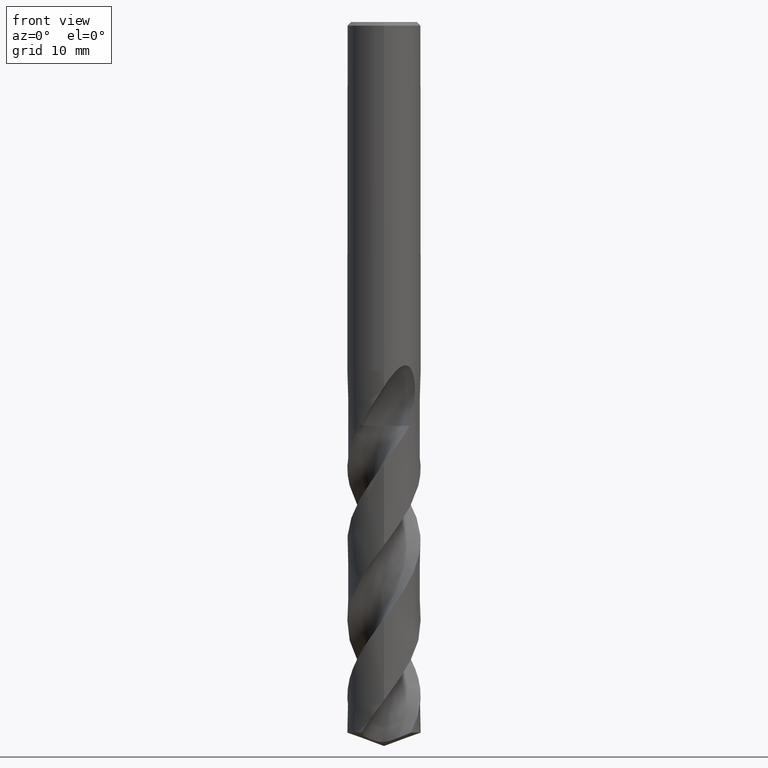
[diagram: clean part render]
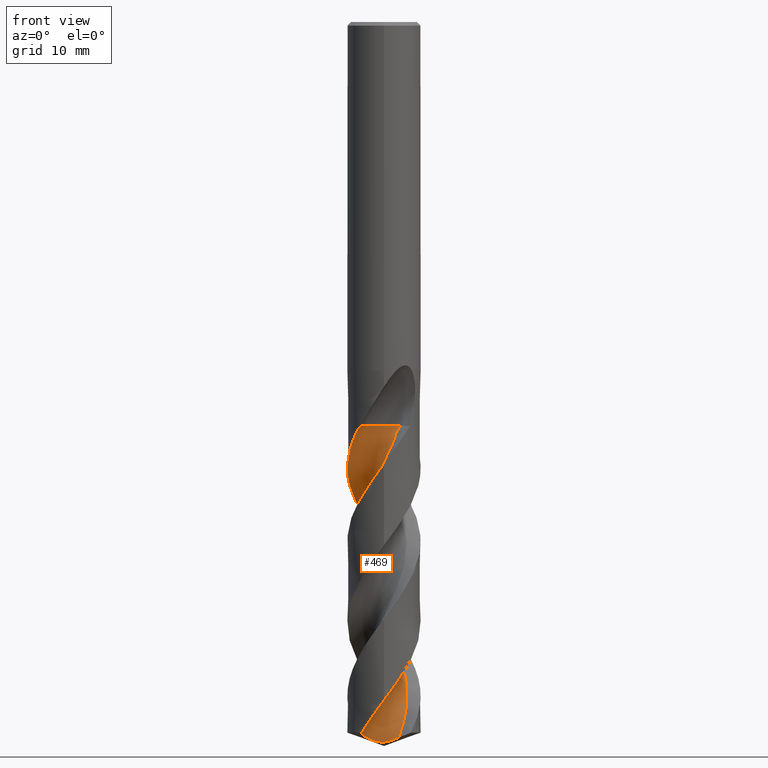
[diagram: same view with one face highlighted and labeled with its STEP entity id]
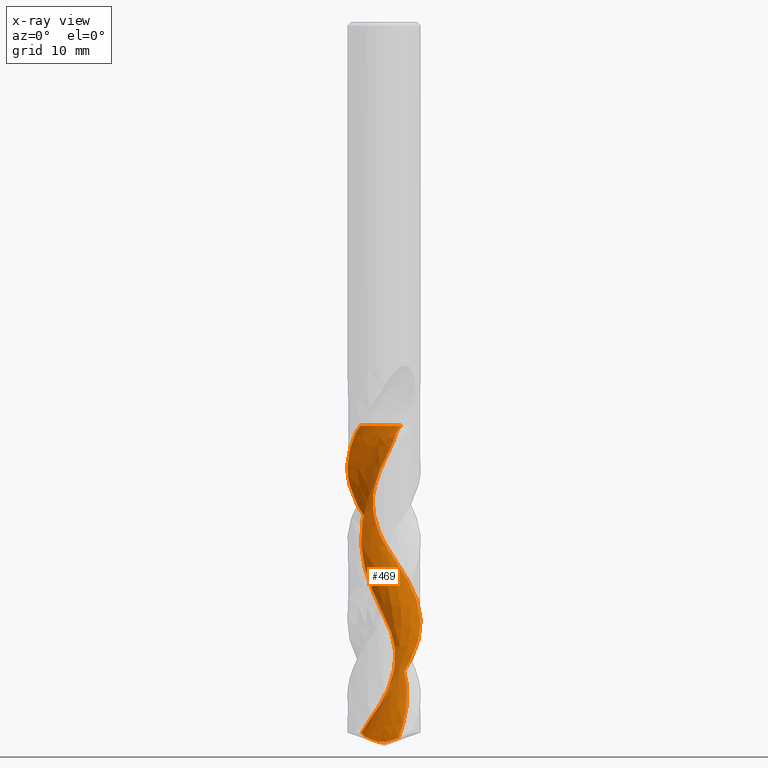
[diagram: x-ray of the same camera — body ghosted, the highlighted face saturated]
A machine part, front view. The second image highlights one B-rep face of the part: STEP entity #469.
The next image is the same camera in x-ray: the body ghosted, the highlighted face saturated — about 0% of this face is hidden behind the body in this view.
In plain terms, the highlighted face is a freeform B-spline surface patch.
Its self-contained STEP definition (entity closure, byte-faithful):
#265=EDGE_CURVE('',#385,#595,#725,.T.);
#289=VERTEX_POINT('',#751);
#355=VERTEX_POINT('',#820);
#369=EDGE_CURVE('',#673,#527,#837,.T.);
#377=EDGE_CURVE('',#527,#385,#845,.T.);
#385=VERTEX_POINT('',#853);
#407=VERTEX_POINT('',#876);
#437=EDGE_CURVE('',#289,#407,#909,.T.);
#469=ADVANCED_FACE('',(#944),#945,.F.);
#503=EDGE_CURVE('',#595,#289,#983,.T.);
#513=EDGE_CURVE('',#355,#653,#995,.T.);
#519=EDGE_CURVE('',#653,#673,#1002,.T.);
#527=VERTEX_POINT('',#1010);
#595=VERTEX_POINT('',#1086);
#653=VERTEX_POINT('',#1147);
#673=VERTEX_POINT('',#1169);
#685=EDGE_CURVE('',#407,#355,#1183,.T.);
#725=CIRCLE('',#1223,2.66666667);
#751=CARTESIAN_POINT('',(1.88561808545044,-1.98104858454956,-44.053));
#820=CARTESIAN_POINT('',(1.5951125702686E-010,-1.22465710514154,-78.5542612665458));
#837=B_SPLINE_CURVE_WITH_KNOTS('',3,(#1659,#1660,#1661,#1662,#1663,#1664,#1665,#1666,#1667,#1668,#1669,#1670,#1671,#1672,#1673,#1674,#1675,#1676,#1677,#1678,#1679,#1680,#1681,#1682,#1683,#1684,#1685,#1686,#1687,#1688,#1689,#1690,#1691,#1692,#1693,#1694,#1695,#1696,#1697,#1698,#1699,#1700,#1701,#1702,#1703,#1704,#1705,#1706,#1707,#1708,#1709,#1710,#1711,#1712,#1713,#1714,#1715,#1716,#1717,#1718,#1719,#1720,#1721,#1722,#1723,#1724,#1725,#1726,#1727,#1728,#1729,#1730,#1731,#1732,#1733,#1734),.UNSPECIFIED.,.F.,.F.,(4,2,2,2,2,2,2,2,2,2,2,2,2,2,2,2,2,2,2,2,2,2,2,2,2,2,2,2,2,2,2,2,2,2,2,2,2,4),(0.0,0.466993075148286,1.56085904181155,3.07977771318983,4.65076827145472,5.67854193360902,7.44799175725429,8.48582980228811,9.35767943266858,11.5467538142344,12.1132031263804,14.417521955391,14.6881141201877,16.8538456197284,17.7613122654109,19.6967075487883,20.7004624429811,22.3146852344594,23.2687747189614,24.9363892447133,25.7599779292434,27.9498842071209,28.5154185793703,30.7073525095157,31.2423332800286,33.442076748491,33.9887296771478,37.702920959675,38.2150786750297,39.0365205480189,39.8603336062619,40.4458257805383,40.7519291553112,41.0120003154966,41.2412726865701,41.5301891019866,42.1226019623575,43.0870979214801),.UNSPECIFIED.);
#845=B_SPLINE_CURVE_WITH_KNOTS('',3,(#1765,#1766,#1767,#1768,#1769,#1770,#1771,#1772,#1773,#1774,#1775,#1776,#1777,#1778,#1779,#1780,#1781,#1782,#1783,#1784,#1785,#1786,#1787,#1788,#1789,#1790,#1791,#1792,#1793,#1794,#1795,#1796,#1797,#1798,#1799,#1800,#1801,#1802,#1803,#1804,#1805,#1806,#1807,#1808,#1809,#1810,#1811,#1812,#1813,#1814,#1815,#1816,#1817,#1818,#1819,#1820,#1821,#1822,#1823,#1824,#1825,#1826,#1827,#1828,#1829,#1830,#1831,#1832,#1833,#1834,#1835,#1836,#1837,#1838,#1839,#1840),.UNSPECIFIED.,.F.,.F.,(4,2,2,2,2,2,2,2,2,2,2,2,2,2,2,2,2,2,2,2,2,2,2,2,2,2,2,2,2,2,2,2,2,2,2,2,2,4),(0.0,0.466993075148286,1.56085904181155,3.07977771318983,4.65076827145472,5.67854193360902,7.44799175725429,8.48582980228811,9.35767943266858,11.5467538142344,12.1132031263804,14.417521955391,14.6881141201877,16.8538456197284,17.7613122654109,19.6967075487883,20.7004624429811,22.3146852344594,23.2687747189614,24.9363892447133,25.7599779292434,27.9498842071209,28.5154185793703,30.7073525095157,31.2423332800286,33.442076748491,33.9887296771478,37.702920959675,38.2150786750297,39.0365205480189,39.8603336062619,40.4458257805383,40.7519291553112,41.0120003154966,41.2412726865701,41.5301891019866,42.1226019623575,43.0870979214801),.UNSPECIFIED.);
#853=CARTESIAN_POINT('',(-2.5488328128519,-3.08265693111187,-44.053));
#876=CARTESIAN_POINT('',(1.60189261773388,-1.94788214096683,-78.0820800006169));
#909=B_SPLINE_CURVE_WITH_KNOTS('',3,(#1963,#1964,#1965,#1966,#1967,#1968,#1969,#1970,#1971,#1972,#1973,#1974,#1975,#1976,#1977,#1978,#1979,#1980,#1981,#1982,#1983,#1984,#1985,#1986,#1987,#1988,#1989,#1990,#1991,#1992,#1993,#1994,#1995,#1996,#1997,#1998,#1999,#2000,#2001,#2002,#2003,#2004,#2005,#2006,#2007,#2008,#2009,#2010,#2011,#2012,#2013,#2014,#2015,#2016,#2017,#2018),.UNSPECIFIED.,.F.,.F.,(4,1,2,1,2,2,2,2,2,1,2,1,2,1,2,1,2,1,2,1,2,1,2,1,2,1,2,1,2,1,2,1,2,2,4),(0.0,0.787558223712185,1.57511644742437,2.36267467113655,3.15023289484874,4.72534934227311,6.30046578969748,7.87558223712185,9.45069868454622,11.0258151319706,12.600931579395,14.1760480268193,15.7511644742437,17.3262809216681,18.9013973690924,20.4765138165168,22.0516302639412,23.6267467113655,25.2018631587899,26.7769796062143,28.3520960536387,29.927212501063,31.5023289484874,33.0774453959118,34.6525618433361,36.2276782907605,37.8027947381849,39.3779111856092,40.9530276330336,42.528144080458,44.1032605278824,45.6783769753067,47.2534934227311,48.8286098701555,50.4037263175798),.UNSPECIFIED.);
#944=FACE_OUTER_BOUND('',#2119,.T.);
#945=B_SPLINE_SURFACE_WITH_KNOTS('',3,3,((#2120,#2121,#2122,#2123,#2124,#2125,#2126,#2127,#2128,#2129,#2130,#2131,#2132,#2133,#2134,#2135,#2136,#2137,#2138,#2139,#2140,#2141,#2142,#2143,#2144,#2145,#2146,#2147,#2148,#2149,#2150,#2151,#2152,#2153,#2154,#2155,#2156,#2157,#2158,#2159,#2160,#2161,#2162,#2163,#2164,#2165,#2166,#2167,#2168,#2169,#2170,#2171,#2172,#2173,#2174,#2175),(#2176,#2177,#2178,#2179,#2180,#2181,#2182,#2183,#2184,#2185,#2186,#2187,#2188,#2189,#2190,#2191,#2192,#2193,#2194,#2195,#2196,#2197,#2198,#2199,#2200,#2201,#2202,#2203,#2204,#2205,#2206,#2207,#2208,#2209,#2210,#2211,#2212,#2213,#2214,#2215,#2216,#2217,#2218,#2219,#2220,#2221,#2222,#2223,#2224,#2225,#2226,#2227,#2228,#2229,#2230,#2231),(#2232,#2233,#2234,#2235,#2236,#2237,#2238,#2239,#2240,#2241,#2242,#2243,#2244,#2245,#2246,#2247,#2248,#2249,#2250,#2251,#2252,#2253,#2254,#2255,#2256,#2257,#2258,#2259,#2260,#2261,#2262,#2263,#2264,#2265,#2266,#2267,#2268,#2269,#2270,#2271,#2272,#2273,#2274,#2275,#2276,#2277,#2278,#2279,#2280,#2281,#2282,#2283,#2284,#2285,#2286,#2287),(#2288,#2289,#2290,#2291,#2292,#2293,#2294,#2295,#2296,#2297,#2298,#2299,#2300,#2301,#2302,#2303,#2304,#2305,#2306,#2307,#2308,#2309,#2310,#2311,#2312,#2313,#2314,#2315,#2316,#2317,#2318,#2319,#2320,#2321,#2322,#2323,#2324,#2325,#2326,#2327,#2328,#2329,#2330,#2331,#2332,#2333,#2334,#2335,#2336,#2337,#2338,#2339,#2340,#2341,#2342,#2343),(#2344,#2345,#2346,#2347,#2348,#2349,#2350,#2351,#2352,#2353,#2354,#2355,#2356,#2357,#2358,#2359,#2360,#2361,#2362,#2363,#2364,#2365,#2366,#2367,#2368,#2369,#2370,#2371,#2372,#2373,#2374,#2375,#2376,#2377,#2378,#2379,#2380,#2381,#2382,#2383,#2384,#2385,#2386,#2387,#2388,#2389,#2390,#2391,#2392,#2393,#2394,#2395,#2396,#2397,#2398,#2399),(#2400,#2401,#2402,#2403,#2404,#2405,#2406,#2407,#2408,#2409,#2410,#2411,#2412,#2413,#2414,#2415,#2416,#2417,#2418,#2419,#2420,#2421,#2422,#2423,#2424,#2425,#2426,#2427,#2428,#2429,#2430,#2431,#2432,#2433,#2434,#2435,#2436,#2437,#2438,#2439,#2440,#2441,#2442,#2443,#2444,#2445,#2446,#2447,#2448,#2449,#2450,#2451,#2452,#2453,#2454,#2455),(#2456,#2457,#2458,#2459,#2460,#2461,#2462,#2463,#2464,#2465,#2466,#2467,#2468,#2469,#2470,#2471,#2472,#2473,#2474,#2475,#2476,#2477,#2478,#2479,#2480,#2481,#2482,#2483,#2484,#2485,#2486,#2487,#2488,#2489,#2490,#2491,#2492,#2493,#2494,#2495,#2496,#2497,#2498,#2499,#2500,#2501,#2502,#2503,#2504,#2505,#2506,#2507,#2508,#2509,#2510,#2511),(#2512,#2513,#2514,#2515,#2516,#2517,#2518,#2519,#2520,#2521,#2522,#2523,#2524,#2525,#2526,#2527,#2528,#2529,#2530,#2531,#2532,#2533,#2534,#2535,#2536,#2537,#2538,#2539,#2540,#2541,#2542,#2543,#2544,#2545,#2546,#2547,#2548,#2549,#2550,#2551,#2552,#2553,#2554,#2555,#2556,#2557,#2558,#2559,#2560,#2561,#2562,#2563,#2564,#2565,#2566,#2567),(#2568,#2569,#2570,#2571,#2572,#2573,#2574,#2575,#2576,#2577,#2578,#2579,#2580,#2581,#2582,#2583,#2584,#2585,#2586,#2587,#2588,#2589,#2590,#2591,#2592,#2593,#2594,#2595,#2596,#2597,#2598,#2599,#2600,#2601,#2602,#2603,#2604,#2605,#2606,#2607,#2608,#2609,#2610,#2611,#2612,#2613,#2614,#2615,#2616,#2617,#2618,#2619,#2620,#2621,#2622,#2623),(#2624,#2625,#2626,#2627,#2628,#2629,#2630,#2631,#2632,#2633,#2634,#2635,#2636,#2637,#2638,#2639,#2640,#2641,#2642,#2643,#2644,#2645,#2646,#2647,#2648,#2649,#2650,#2651,#2652,#2653,#2654,#2655,#2656,#2657,#2658,#2659,#2660,#2661,#2662,#2663,#2664,#2665,#2666,#2667,#2668,#2669,#2670,#2671,#2672,#2673,#2674,#2675,#2676,#2677,#2678,#2679),(#2680,#2681,#2682,#2683,#2684,#2685,#2686,#2687,#2688,#2689,#2690,#2691,#2692,#2693,#2694,#2695,#2696,#2697,#2698,#2699,#2700,#2701,#2702,#2703,#2704,#2705,#2706,#2707,#2708,#2709,#2710,#2711,#2712,#2713,#2714,#2715,#2716,#2717,#2718,#2719,#2720,#2721,#2722,#2723,#2724,#2725,#2726,#2727,#2728,#2729,#2730,#2731,#2732,#2733,#2734,#2735)),.UNSPECIFIED.,.F.,.F.,.F.,(4,1,1,1,1,1,1,1,4),(4,1,2,1,2,2,2,2,2,1,2,1,2,1,2,1,2,1,2,1,2,1,2,1,2,1,2,1,2,1,2,1,2,2,4),(4.27095186761561E-018,0.39270124676232,0.785402493524641,1.17810374028696,1.57080498704928,1.9635062338116,2.35620748057392,2.74890872733624,3.14160997409856),(0.0,0.787558223712185,1.57511644742437,2.36267467113655,3.15023289484874,4.72534934227311,6.30046578969748,7.87558223712185,9.45069868454622,11.0258151319706,12.600931579395,14.1760480268193,15.7511644742437,17.3262809216681,18.9013973690924,20.4765138165168,22.0516302639412,23.6267467113655,25.2018631587899,26.7769796062143,28.3520960536387,29.927212501063,31.5023289484874,33.0774453959118,34.6525618433361,36.2276782907605,37.8027947381849,39.3779111856092,40.9530276330336,42.528144080458,44.1032605278824,45.6783769753067,47.2534934227311,48.8286098701555,50.4037263175798),.UNSPECIFIED.);
#983=CIRCLE('',#3192,2.66666667);
#995=B_SPLINE_CURVE_WITH_KNOTS('',3,(#3205,#3206,#3207,#3208,#3209,#3210,#3211,#3212,#3213,#3214,#3215,#3216,#3217,#3218,#3219,#3220,#3221,#3222,#3223,#3224),.UNSPECIFIED.,.F.,.F.,(4,2,2,2,2,2,2,2,2,4),(0.0,1.64133997887445,2.78218913730545,3.88524741802057,5.19155584151713,6.70887719510368,8.46802953306298,10.4836395074553,12.0346978723326,13.5906877847211),.UNSPECIFIED.);
#1002=B_SPLINE_CURVE_WITH_KNOTS('',3,(#3234,#3235,#3236,#3237,#3238,#3239,#3240,#3241,#3242,#3243,#3244,#3245,#3246,#3247,#3248,#3249,#3250,#3251,#3252,#3253,#3254,#3255,#3256,#3257,#3258,#3259,#3260,#3261,#3262,#3263,#3264,#3265,#3266,#3267,#3268,#3269,#3270,#3271,#3272,#3273,#3274,#3275,#3276,#3277,#3278,#3279,#3280,#3281,#3282,#3283,#3284,#3285,#3286,#3287,#3288,#3289,#3290,#3291,#3292,#3293,#3294,#3295,#3296,#3297,#3298,#3299,#3300,#3301,#3302,#3303,#3304,#3305,#3306,#3307,#3308,#3309),.UNSPECIFIED.,.F.,.F.,(4,2,2,2,2,2,2,2,2,2,2,2,2,2,2,2,2,2,2,2,2,2,2,2,2,2,2,2,2,2,2,2,2,2,2,2,2,4),(0.0,0.466993075148286,1.56085904181155,3.07977771318983,4.65076827145472,5.67854193360902,7.44799175725429,8.48582980228811,9.35767943266858,11.5467538142344,12.1132031263804,14.417521955391,14.6881141201877,16.8538456197284,17.7613122654109,19.6967075487883,20.7004624429811,22.3146852344594,23.2687747189614,24.9363892447133,25.7599779292434,27.9498842071209,28.5154185793703,30.7073525095157,31.2423332800286,33.442076748491,33.9887296771478,37.702920959675,38.2150786750297,39.0365205480189,39.8603336062619,40.4458257805383,40.7519291553112,41.0120003154966,41.2412726865701,41.5301891019866,42.1226019623575,43.0870979214801),.UNSPECIFIED.);
#1010=CARTESIAN_POINT('',(-2.92011337268194E-013,3.99994831991984,-57.1076866303911));
#1086=CARTESIAN_POINT('',(0.312690919283315,-1.21838198033207,-44.053));
#1147=CARTESIAN_POINT('',(-2.44003030410645,-3.16958232501416,-77.5441190629352));
#1169=CARTESIAN_POINT('',(8.09910003246913E-012,-3.99999106807003,-74.0120660422402));
#1183=B_SPLINE_CURVE_WITH_KNOTS('',3,(#5097,#5098,#5099,#5100,#5101,#5102,#5103,#5104,#5105,#5106,#5107,#5108,#5109,#5110,#5111,#5112,#5113,#5114,#5115,#5116),.UNSPECIFIED.,.F.,.F.,(4,2,2,2,2,2,2,2,2,4),(0.0,1.64133997887445,2.78218913730545,3.88524741802057,5.19155584151713,6.70887719510368,8.46802953306298,10.4836395074553,12.0346978723326,13.5906877847211),.UNSPECIFIED.);
#1223=AXIS2_PLACEMENT_3D('',#5148,#5149,#5150);
#1659=CARTESIAN_POINT('',(-2.44003030410643,-3.16958232501417,-77.5441190629352));
#1660=CARTESIAN_POINT('',(-2.36653943218278,-3.22615718932682,-77.41909998862));
#1661=CARTESIAN_POINT('',(-2.29109681931183,-3.28016388675594,-77.2942115285044));
#1662=CARTESIAN_POINT('',(-2.03286758279446,-3.45176005834521,-76.8764024681429));
#1663=CARTESIAN_POINT('',(-1.84218511839699,-3.55721865966488,-76.5828194805431));
#1664=CARTESIAN_POINT('',(-1.36772987432182,-3.77104902941733,-75.8838686907894));
#1665=CARTESIAN_POINT('',(-1.07882384472195,-3.86360090557134,-75.4812749264571));
#1666=CARTESIAN_POINT('',(-0.475974533362218,-3.98385147961287,-74.6544280908261));
#1667=CARTESIAN_POINT('',(-0.163245125045734,-4.00890235173543,-74.2313462920688));
#1668=CARTESIAN_POINT('',(0.354282392357964,-3.98953046200891,-73.536010155739));
#1669=CARTESIAN_POINT('',(0.558024811992571,-3.96616073812796,-73.262231516311));
#1670=CARTESIAN_POINT('',(1.10506788883261,-3.86043305349245,-72.5136809024347));
#1671=CARTESIAN_POINT('',(1.44072751075867,-3.74815208077645,-72.0377547604957));
#1672=CARTESIAN_POINT('',(1.94349026436057,-3.50221823943321,-71.2867859968702));
#1673=CARTESIAN_POINT('',(2.12190254993383,-3.39707124681849,-71.0103453221121));
#1674=CARTESIAN_POINT('',(2.43355346883196,-3.1792775270544,-70.4991490924699));
#1675=CARTESIAN_POINT('',(2.56892167044668,-3.07088930802768,-70.2646646470823));
#1676=CARTESIAN_POINT('',(3.01706190506668,-2.66185354972843,-69.4457283526137));
#1677=CARTESIAN_POINT('',(3.28766602103833,-2.31931034648457,-68.8716881287357));
#1678=CARTESIAN_POINT('',(3.55246014523061,-1.841855836092,-68.1351639283753));
#1679=CARTESIAN_POINT('',(3.60265698135378,-1.74162603129385,-67.9832964960658));
#1680=CARTESIAN_POINT('',(3.83572001433136,-1.22287509194081,-67.2158669078585));
#1681=CARTESIAN_POINT('',(3.94994759812654,-0.778045318450372,-66.6132901652099));
#1682=CARTESIAN_POINT('',(3.99117214994822,-0.270505714153656,-65.925144698073));
#1683=CARTESIAN_POINT('',(3.99442842378655,-0.217182115088803,-65.8527726150629));
#1684=CARTESIAN_POINT('',(4.01414540009559,0.264176060987026,-65.2015770291237));
#1685=CARTESIAN_POINT('',(3.96288823620994,0.692291551623742,-64.6339157536924));
#1686=CARTESIAN_POINT('',(3.79479359354523,1.27732961071964,-63.8143634585176));
#1687=CARTESIAN_POINT('',(3.73367173641758,1.44626193299723,-63.5711597535409));
#1688=CARTESIAN_POINT('',(3.50709409595252,1.96130950564172,-62.8130234918723));
#1689=CARTESIAN_POINT('',(3.30338152867672,2.28776733678422,-62.3049164661655));
#1690=CARTESIAN_POINT('',(2.9284041885554,2.73194703410919,-61.5213888270366));
#1691=CARTESIAN_POINT('',(2.78908096338837,2.87407604629689,-61.252237273913));
#1692=CARTESIAN_POINT('',(2.39903070639518,3.21663851910576,-60.553936793662));
#1693=CARTESIAN_POINT('',(2.13417567637753,3.3981221774218,-60.128057003741));
#1694=CARTESIAN_POINT('',(1.68304499724717,3.63355589517643,-59.4430098736708));
#1695=CARTESIAN_POINT('',(1.50973820833729,3.70891062620023,-59.1872166773107));
#1696=CARTESIAN_POINT('',(1.02016578453944,3.88174403455321,-58.4878978613247));
#1697=CARTESIAN_POINT('',(0.696298353513876,3.95271806615963,-58.0483037219411));
#1698=CARTESIAN_POINT('',(0.204713328917628,3.99803964666923,-57.3844324155601));
#1699=CARTESIAN_POINT('',(0.0417590514874879,4.00302847778836,-57.1639714298073));
#1700=CARTESIAN_POINT('',(-0.552406922914989,3.98510000380912,-56.3614493593831));
#1701=CARTESIAN_POINT('',(-0.979076084521999,3.9022519193712,-55.7896982340833));
#1702=CARTESIAN_POINT('',(-1.48901304130448,3.71413917018153,-55.0567879871774));
#1703=CARTESIAN_POINT('',(-1.59181016631804,3.67125216361922,-54.905898434482));
#1704=CARTESIAN_POINT('',(-2.08394572693071,3.44138415041336,-54.1726914900018));
#1705=CARTESIAN_POINT('',(-2.44279748107018,3.19664819219933,-53.6014189746885));
#1706=CARTESIAN_POINT('',(-2.83201400886412,2.82671108804017,-52.8770885441765));
#1707=CARTESIAN_POINT('',(-2.90531587936063,2.75130723749786,-52.7345665039194));
#1708=CARTESIAN_POINT('',(-3.26447789654264,2.35150042677078,-52.0085787094983));
#1709=CARTESIAN_POINT('',(-3.49944777315625,1.98512773776562,-51.4359727677321));
#1710=CARTESIAN_POINT('',(-3.71398904500096,1.48906522590048,-50.7083875053442));
#1711=CARTESIAN_POINT('',(-3.75262057519129,1.38881639640494,-50.5631805395433));
#1712=CARTESIAN_POINT('',(-4.02181293755795,0.596800710413922,-49.4348485174782));
#1713=CARTESIAN_POINT('',(-4.06267297585666,-0.1432667793182,-48.4811708986464));
#1714=CARTESIAN_POINT('',(-3.88678098324579,-0.949911893349955,-47.3640768686547));
#1715=CARTESIAN_POINT('',(-3.8618493145911,-1.04670091186072,-47.2280849796507));
#1716=CARTESIAN_POINT('',(-3.78716471925533,-1.29718291161859,-46.8751618698827));
#1717=CARTESIAN_POINT('',(-3.73155899958446,-1.44968295910734,-46.6585370216559));
#1718=CARTESIAN_POINT('',(-3.60058866682281,-1.74986295349734,-46.2268346263341));
#1719=CARTESIAN_POINT('',(-3.52634773279137,-1.89510205494165,-46.0163296892236));
#1720=CARTESIAN_POINT('',(-3.38272509934263,-2.13781503216381,-45.6312282169192));
#1721=CARTESIAN_POINT('',(-3.3202283699948,-2.2333186305512,-45.470368305817));
#1722=CARTESIAN_POINT('',(-3.22221264938645,-2.37066394586686,-45.2198689559426));
#1723=CARTESIAN_POINT('',(-3.19964072951217,-2.40058137984461,-45.1614801928599));
#1724=CARTESIAN_POINT('',(-3.16162621487717,-2.45036538638801,-45.0670806012796));
#1725=CARTESIAN_POINT('',(-3.1435766532575,-2.47349278801983,-45.0241735305459));
#1726=CARTESIAN_POINT('',(-3.10836648899329,-2.51755767757758,-44.9441475769958));
#1727=CARTESIAN_POINT('',(-3.09138391199728,-2.53839202101596,-44.9070139536361));
#1728=CARTESIAN_POINT('',(-3.05180964548351,-2.58592053609453,-44.8238100399286));
#1729=CARTESIAN_POINT('',(-3.02895080230337,-2.61267796364424,-44.7780178360415));
#1730=CARTESIAN_POINT('',(-2.95659132936607,-2.69505733363308,-44.6399440750886));
#1731=CARTESIAN_POINT('',(-2.90459909726043,-2.75117249280536,-44.5498720538232));
#1732=CARTESIAN_POINT('',(-2.75801590118876,-2.89989843845145,-44.3188872108996));
#1733=CARTESIAN_POINT('',(-2.65831829493388,-2.99213149262657,-44.183386918948));
#1734=CARTESIAN_POINT('',(-2.5488328128519,-3.08265693111187,-44.053));
#1765=CARTESIAN_POINT('',(-2.44003030410643,-3.16958232501417,-77.5441190629352));
#1766=CARTESIAN_POINT('',(-2.36653943218278,-3.22615718932682,-77.41909998862));
#1767=CARTESIAN_POINT('',(-2.29109681931183,-3.28016388675594,-77.2942115285044));
#1768=CARTESIAN_POINT('',(-2.03286758279446,-3.45176005834521,-76.8764024681429));
#1769=CARTESIAN_POINT('',(-1.84218511839699,-3.55721865966488,-76.5828194805431));
#1770=CARTESIAN_POINT('',(-1.36772987432182,-3.77104902941733,-75.8838686907894));
#1771=CARTESIAN_POINT('',(-1.07882384472195,-3.86360090557134,-75.4812749264571));
#1772=CARTESIAN_POINT('',(-0.475974533362218,-3.98385147961287,-74.6544280908261));
#1773=CARTESIAN_POINT('',(-0.163245125045734,-4.00890235173543,-74.2313462920688));
#1774=CARTESIAN_POINT('',(0.354282392357964,-3.98953046200891,-73.536010155739));
#1775=CARTESIAN_POINT('',(0.558024811992571,-3.96616073812796,-73.262231516311));
#1776=CARTESIAN_POINT('',(1.10506788883261,-3.86043305349245,-72.5136809024347));
#1777=CARTESIAN_POINT('',(1.44072751075867,-3.74815208077645,-72.0377547604957));
#1778=CARTESIAN_POINT('',(1.94349026436057,-3.50221823943321,-71.2867859968702));
#1779=CARTESIAN_POINT('',(2.12190254993383,-3.39707124681849,-71.0103453221121));
#1780=CARTESIAN_POINT('',(2.43355346883196,-3.1792775270544,-70.4991490924699));
#1781=CARTESIAN_POINT('',(2.56892167044668,-3.07088930802768,-70.2646646470823));
#1782=CARTESIAN_POINT('',(3.01706190506668,-2.66185354972843,-69.4457283526137));
#1783=CARTESIAN_POINT('',(3.28766602103833,-2.31931034648457,-68.8716881287357));
#1784=CARTESIAN_POINT('',(3.55246014523061,-1.841855836092,-68.1351639283753));
#1785=CARTESIAN_POINT('',(3.60265698135378,-1.74162603129385,-67.9832964960658));
#1786=CARTESIAN_POINT('',(3.83572001433136,-1.22287509194081,-67.2158669078585));
#1787=CARTESIAN_POINT('',(3.94994759812654,-0.778045318450372,-66.6132901652099));
#1788=CARTESIAN_POINT('',(3.99117214994822,-0.270505714153656,-65.925144698073));
#1789=CARTESIAN_POINT('',(3.99442842378655,-0.217182115088803,-65.8527726150629));
#1790=CARTESIAN_POINT('',(4.01414540009559,0.264176060987026,-65.2015770291237));
#1791=CARTESIAN_POINT('',(3.96288823620994,0.692291551623742,-64.6339157536924));
#1792=CARTESIAN_POINT('',(3.79479359354523,1.27732961071964,-63.8143634585176));
#1793=CARTESIAN_POINT('',(3.73367173641758,1.44626193299723,-63.5711597535409));
#1794=CARTESIAN_POINT('',(3.50709409595252,1.96130950564172,-62.8130234918723));
#1795=CARTESIAN_POINT('',(3.30338152867672,2.28776733678422,-62.3049164661655));
#1796=CARTESIAN_POINT('',(2.9284041885554,2.73194703410919,-61.5213888270366));
#1797=CARTESIAN_POINT('',(2.78908096338837,2.87407604629689,-61.252237273913));
#1798=CARTESIAN_POINT('',(2.39903070639518,3.21663851910576,-60.553936793662));
#1799=CARTESIAN_POINT('',(2.13417567637753,3.3981221774218,-60.128057003741));
#1800=CARTESIAN_POINT('',(1.68304499724717,3.63355589517643,-59.4430098736708));
#1801=CARTESIAN_POINT('',(1.50973820833729,3.70891062620023,-59.1872166773107));
#1802=CARTESIAN_POINT('',(1.02016578453944,3.88174403455321,-58.4878978613247));
#1803=CARTESIAN_POINT('',(0.696298353513876,3.95271806615963,-58.0483037219411));
#1804=CARTESIAN_POINT('',(0.204713328917628,3.99803964666923,-57.3844324155601));
#1805=CARTESIAN_POINT('',(0.0417590514874879,4.00302847778836,-57.1639714298073));
#1806=CARTESIAN_POINT('',(-0.552406922914989,3.98510000380912,-56.3614493593831));
#1807=CARTESIAN_POINT('',(-0.979076084521999,3.9022519193712,-55.7896982340833));
#1808=CARTESIAN_POINT('',(-1.48901304130448,3.71413917018153,-55.0567879871774));
#1809=CARTESIAN_POINT('',(-1.59181016631804,3.67125216361922,-54.905898434482));
#1810=CARTESIAN_POINT('',(-2.08394572693071,3.44138415041336,-54.1726914900018));
#1811=CARTESIAN_POINT('',(-2.44279748107018,3.19664819219933,-53.6014189746885));
#1812=CARTESIAN_POINT('',(-2.83201400886412,2.82671108804017,-52.8770885441765));
#1813=CARTESIAN_POINT('',(-2.90531587936063,2.75130723749786,-52.7345665039194));
#1814=CARTESIAN_POINT('',(-3.26447789654264,2.35150042677078,-52.0085787094983));
#1815=CARTESIAN_POINT('',(-3.49944777315625,1.98512773776562,-51.4359727677321));
#1816=CARTESIAN_POINT('',(-3.71398904500096,1.48906522590048,-50.7083875053442));
#1817=CARTESIAN_POINT('',(-3.75262057519129,1.38881639640494,-50.5631805395433));
#1818=CARTESIAN_POINT('',(-4.02181293755795,0.596800710413922,-49.4348485174782));
#1819=CARTESIAN_POINT('',(-4.06267297585666,-0.1432667793182,-48.4811708986464));
#1820=CARTESIAN_POINT('',(-3.88678098324579,-0.949911893349955,-47.3640768686547));
#1821=CARTESIAN_POINT('',(-3.8618493145911,-1.04670091186072,-47.2280849796507));
#1822=CARTESIAN_POINT('',(-3.78716471925533,-1.29718291161859,-46.8751618698827));
#1823=CARTESIAN_POINT('',(-3.73155899958446,-1.44968295910734,-46.6585370216559));
#1824=CARTESIAN_POINT('',(-3.60058866682281,-1.74986295349734,-46.2268346263341));
#1825=CARTESIAN_POINT('',(-3.52634773279137,-1.89510205494165,-46.0163296892236));
#1826=CARTESIAN_POINT('',(-3.38272509934263,-2.13781503216381,-45.6312282169192));
#1827=CARTESIAN_POINT('',(-3.3202283699948,-2.2333186305512,-45.470368305817));
#1828=CARTESIAN_POINT('',(-3.22221264938645,-2.37066394586686,-45.2198689559426));
#1829=CARTESIAN_POINT('',(-3.19964072951217,-2.40058137984461,-45.1614801928599));
#1830=CARTESIAN_POINT('',(-3.16162621487717,-2.45036538638801,-45.0670806012796));
#1831=CARTESIAN_POINT('',(-3.1435766532575,-2.47349278801983,-45.0241735305459));
#1832=CARTESIAN_POINT('',(-3.10836648899329,-2.51755767757758,-44.9441475769958));
#1833=CARTESIAN_POINT('',(-3.09138391199728,-2.53839202101596,-44.9070139536361));
#1834=CARTESIAN_POINT('',(-3.05180964548351,-2.58592053609453,-44.8238100399286));
#1835=CARTESIAN_POINT('',(-3.02895080230337,-2.61267796364424,-44.7780178360415));
#1836=CARTESIAN_POINT('',(-2.95659132936607,-2.69505733363308,-44.6399440750886));
#1837=CARTESIAN_POINT('',(-2.90459909726043,-2.75117249280536,-44.5498720538232));
#1838=CARTESIAN_POINT('',(-2.75801590118876,-2.89989843845145,-44.3188872108996));
#1839=CARTESIAN_POINT('',(-2.65831829493388,-2.99213149262657,-44.183386918948));
#1840=CARTESIAN_POINT('',(-2.5488328128519,-3.08265693111187,-44.053));
#1963=CARTESIAN_POINT('',(1.88561808545044,-1.98104858454956,-44.053));
#1964=CARTESIAN_POINT('',(1.69871710418192,-1.97145550625743,-44.2347711487142));
#1965=CARTESIAN_POINT('',(1.40105879059682,-1.9902735115873,-44.5966997313065));
#1966=CARTESIAN_POINT('',(1.25524262252866,-2.07849680161746,-44.9582869916186));
#1967=CARTESIAN_POINT('',(1.17295794795068,-2.21050845906527,-45.3246242624263));
#1968=CARTESIAN_POINT('',(1.05910316465496,-2.32106882855452,-45.6916518436982));
#1969=CARTESIAN_POINT('',(0.897888482859323,-2.3825138896529,-46.0564769908884));
#1970=CARTESIAN_POINT('',(0.633345362803169,-2.43920137865008,-46.600074037587));
#1971=CARTESIAN_POINT('',(0.463314016011667,-2.47053526617684,-46.9629339274622));
#1972=CARTESIAN_POINT('',(0.132702175014207,-2.52415658086229,-47.6927269873472));
#1973=CARTESIAN_POINT('',(-0.039404545569242,-2.52664816621715,-48.0572720913552));
#1974=CARTESIAN_POINT('',(-0.379671808132233,-2.49677684826464,-48.7847694331444));
#1975=CARTESIAN_POINT('',(-0.548473533722496,-2.46309517554488,-49.1487251187091));
#1976=CARTESIAN_POINT('',(-0.875232425195068,-2.36863703771597,-49.8772121125722));
#1977=CARTESIAN_POINT('',(-1.03381734780271,-2.30263611286328,-50.2412921072369));
#1978=CARTESIAN_POINT('',(-1.33502888416427,-2.14783636284207,-50.9693745043084));
#1979=CARTESIAN_POINT('',(-1.61895958980909,-1.95136446728658,-51.6977800472369));
#1980=CARTESIAN_POINT('',(-1.85747432109222,-1.70407157619252,-52.4255614071146));
#1981=CARTESIAN_POINT('',(-2.0743969412662,-1.44548140937606,-53.1538195459448));
#1982=CARTESIAN_POINT('',(-2.25865002553005,-1.15417533283017,-53.882430307527));
#1983=CARTESIAN_POINT('',(-2.38000745875682,-0.832532855869806,-54.6102664537786));
#1984=CARTESIAN_POINT('',(-2.47669043022925,-0.508863955865235,-55.3384250500163));
#1985=CARTESIAN_POINT('',(-2.53066669506456,-0.168324476237864,-56.0669506972623));
#1986=CARTESIAN_POINT('',(-2.51522906193053,0.175034925779605,-56.7947747192682));
#1987=CARTESIAN_POINT('',(-2.47634327747086,0.510535543078954,-57.5229696783011));
#1988=CARTESIAN_POINT('',(-2.39148385935212,0.844710729094954,-58.2515224547695));
#1989=CARTESIAN_POINT('',(-2.24167618595024,1.15407285382542,-58.9793485391108));
#1990=CARTESIAN_POINT('',(-2.07345219583152,1.44695155834701,-59.7075328176437));
#1991=CARTESIAN_POINT('',(-1.86353049485122,1.72045642099337,-60.4360784421937));
#1992=CARTESIAN_POINT('',(-1.60373916107546,1.94551775505974,-61.1639045022787));
#1993=CARTESIAN_POINT('',(-1.33352672688686,2.1481577037688,-61.8920915525542));
#1994=CARTESIAN_POINT('',(-1.0326550475334,2.31653153460555,-62.6206388100986));
#1995=CARTESIAN_POINT('',(-0.705100916554753,2.4207083464109,-63.3484648169749));
#1996=CARTESIAN_POINT('',(-0.376829531664485,2.50017441221641,-64.0766514406906));
#1997=CARTESIAN_POINT('',(-0.033921102047061,2.53605044123371,-64.8051986438269));
#1998=CARTESIAN_POINT('',(0.308151357864577,2.50240605650522,-65.5330245937897));
#1999=CARTESIAN_POINT('',(0.641124326470529,2.44577453490987,-66.2612107871778));
#2000=CARTESIAN_POINT('',(0.970329160379157,2.34332189545187,-66.9897575800239));
#2001=CARTESIAN_POINT('',(1.2713137576936,2.17733543498727,-67.7175850022408));
#2002=CARTESIAN_POINT('',(1.55486200877199,1.99382130281938,-68.4457743364049));
#2003=CARTESIAN_POINT('',(1.81685073746285,1.76967945548349,-69.1743223821374));
#2004=CARTESIAN_POINT('',(2.02781637909507,1.49831165432829,-69.9021423385309));
#2005=CARTESIAN_POINT('',(2.21584766564785,1.21774430736986,-70.6303183817833));
#2006=CARTESIAN_POINT('',(2.36805036840725,0.908399420444521,-71.3588640141905));
#2007=CARTESIAN_POINT('',(2.45469953354382,0.575760612307374,-72.0867139411507));
#2008=CARTESIAN_POINT('',(2.51657007996296,0.243667674758999,-72.8149373763252));
#2009=CARTESIAN_POINT('',(2.53413914952904,-0.100719705432679,-73.5434851220113));
#2010=CARTESIAN_POINT('',(2.48267330657574,-0.440415531595069,-74.271236674593));
#2011=CARTESIAN_POINT('',(2.40905004043989,-0.769761451436298,-74.9993206860832));
#2012=CARTESIAN_POINT('',(2.289452040094,-1.09303356828949,-75.7278757899758));
#2013=CARTESIAN_POINT('',(2.10609953626921,-1.38472010627573,-76.4558700752252));
#2014=CARTESIAN_POINT('',(1.90515688375822,-1.6576834552991,-77.1842455406873));
#2015=CARTESIAN_POINT('',(1.78752767061407,-1.78279863615638,-77.5483980349687));
#2016=CARTESIAN_POINT('',(1.53619302644919,-2.0094869113596,-78.2760297747866));
#2017=CARTESIAN_POINT('',(1.39219443422046,-2.10643437031163,-78.6399434306458));
#2018=CARTESIAN_POINT('',(1.23772979094716,-2.18602061778716,-79.0036560380439));
#2119=EDGE_LOOP('',(#5348,#5349,#5350,#5351,#5352,#5353,#5354,#5355));
#2120=CARTESIAN_POINT('',(-1.88561808545044,-5.75228475545044,-44.053));
#2121=CARTESIAN_POINT('',(-2.0748424016559,-5.74036834167693,-44.2347111820866));
#2122=CARTESIAN_POINT('',(-2.45768282621587,-5.67658281948247,-44.6010506262366));
#2123=CARTESIAN_POINT('',(-2.83672477600638,-5.50681601707043,-44.9685873157248));
#2124=CARTESIAN_POINT('',(-3.19972604058699,-5.27273565390364,-45.3305179147087));
#2125=CARTESIAN_POINT('',(-3.54883646002288,-5.02777041119343,-45.6913787011269));
#2126=CARTESIAN_POINT('',(-3.87523529612714,-4.7678020391308,-46.0544817662319));
#2127=CARTESIAN_POINT('',(-4.34948265800626,-4.36981623492712,-46.6033243118205));
#2128=CARTESIAN_POINT('',(-4.63818519739632,-4.06934256682616,-46.9688632645854));
#2129=CARTESIAN_POINT('',(-5.14075851269367,-3.40283040892474,-47.6953041656039));
#2130=CARTESIAN_POINT('',(-5.35956882233019,-3.04621043623093,-48.0588744203096));
#2131=CARTESIAN_POINT('',(-5.72139083343968,-2.29659034309069,-48.7878176522458));
#2132=CARTESIAN_POINT('',(-5.864779605191,-1.90417531692651,-49.1520694267406));
#2133=CARTESIAN_POINT('',(-6.0672493674153,-1.09646737950463,-49.8799237953738));
#2134=CARTESIAN_POINT('',(-6.12824452286799,-0.682714266010691,-50.2440306649577));
#2135=CARTESIAN_POINT('',(-6.1616738118374,0.150158831111139,-50.972332201339));
#2136=CARTESIAN_POINT('',(-6.11430621530324,0.984260308935617,-51.7002737701539));
#2137=CARTESIAN_POINT('',(-5.90112540210279,1.79270473222553,-52.4289135752216));
#2138=CARTESIAN_POINT('',(-5.6021597246892,2.57115876245143,-53.1570203563027));
#2139=CARTESIAN_POINT('',(-5.22856707947427,3.31869551837139,-53.8847328395642));
#2140=CARTESIAN_POINT('',(-4.71330543427188,3.97725100267945,-54.6133106240272));
#2141=CARTESIAN_POINT('',(-4.13136656870392,4.57447114425136,-55.3415281981285));
#2142=CARTESIAN_POINT('',(-3.49303852702021,5.11378732682885,-56.0693357269174));
#2143=CARTESIAN_POINT('',(-2.75962059154981,5.51531692658076,-56.7979272739066));
#2144=CARTESIAN_POINT('',(-1.98913497717789,5.83415426108515,-57.5261043319823));
#2145=CARTESIAN_POINT('',(-1.18970894191142,6.07754845404524,-58.2538815603436));
#2146=CARTESIAN_POINT('',(-0.357326334321131,6.15682850013663,-58.9824707460166));
#2147=CARTESIAN_POINT('',(0.476453649679866,6.14549043466452,-59.7106597130872));
#2148=CARTESIAN_POINT('',(1.3070243529172,6.05340565828876,-60.438444939949));
#2149=CARTESIAN_POINT('',(2.10305743080905,5.79752954175811,-61.1670341651153));
#2150=CARTESIAN_POINT('',(2.86459106406186,5.45785433682353,-61.895220020658));
#2151=CARTESIAN_POINT('',(3.59129178456279,5.04526340235638,-62.6230033813133));
#2152=CARTESIAN_POINT('',(4.2215822353658,4.49583022883483,-63.3515926732365));
#2153=CARTESIAN_POINT('',(4.78708331217688,3.88303046099331,-64.0797790884477));
#2154=CARTESIAN_POINT('',(5.29178754522439,3.21699744518891,-64.8075626688186));
#2155=CARTESIAN_POINT('',(5.65387934160946,2.46331871686825,-65.5361519826524));
#2156=CARTESIAN_POINT('',(5.93142540219789,1.67700992481101,-66.2643385608918));
#2157=CARTESIAN_POINT('',(6.1320927651231,0.865801592397677,-66.9921220054496));
#2158=CARTESIAN_POINT('',(6.16712298753372,0.0303859617664778,-67.7207098323858));
#2159=CARTESIAN_POINT('',(6.11159171124345,-0.801622044448957,-68.448894087938));
#2160=CARTESIAN_POINT('',(5.97560311939556,-1.62614543622089,-69.1766783477619));
#2161=CARTESIAN_POINT('',(5.67788749405107,-2.40749397981856,-69.9052739135521));
#2162=CARTESIAN_POINT('',(5.29831563880729,-3.14994122123602,-70.6334685691919));
#2163=CARTESIAN_POINT('',(4.84777014952999,-3.85372942265754,-71.3612472285655));
#2164=CARTESIAN_POINT('',(4.26569911108234,-4.45400889472423,-72.0898114323896));
#2165=CARTESIAN_POINT('',(3.62379953213806,-4.98627430592916,-72.8179695324542));
#2166=CARTESIAN_POINT('',(2.93193896161057,-5.45503766172046,-73.5457764968193));
#2167=CARTESIAN_POINT('',(2.1600220440256,-5.77656520929115,-74.274441797097));
#2168=CARTESIAN_POINT('',(1.35998596485068,-6.01170856952258,-75.0026930905657));
#2169=CARTESIAN_POINT('',(0.539388423313962,-6.16878149374002,-75.7303754874454));
#2170=CARTESIAN_POINT('',(-0.296383435877542,-6.16019404038665,-76.4588056822081));
#2171=CARTESIAN_POINT('',(-1.12414309743108,-6.06226834035514,-77.1869736932007));
#2172=CARTESIAN_POINT('',(-1.5327439227691,-5.97242774281627,-77.5511789511912));
#2173=CARTESIAN_POINT('',(-2.32296934076703,-5.70867711215669,-78.2792483064728));
#2174=CARTESIAN_POINT('',(-2.70387455414173,-5.53996117257398,-78.6426271663919));
#2175=CARTESIAN_POINT('',(-3.06511498634734,-5.33720503610894,-79.0065016763936));
#2176=CARTESIAN_POINT('',(-2.13243607235588,-5.50544636091594,-44.0530000000001));
#2177=CARTESIAN_POINT('',(-2.32150831936558,-5.49337789015518,-44.2347067839711));
#2178=CARTESIAN_POINT('',(-2.69894218796743,-5.42401741223764,-44.6013697203719));
#2179=CARTESIAN_POINT('',(-3.06109672723077,-5.23898587152524,-44.9693427391917));
#2180=CARTESIAN_POINT('',(-3.40013724121201,-4.98653411256913,-45.3309501545091));
#2181=CARTESIAN_POINT('',(-3.72597834887179,-4.72617256680508,-45.6913586689355));
#2182=CARTESIAN_POINT('',(-4.03133997359351,-4.45539363782329,-46.0543354363304));
#2183=CARTESIAN_POINT('',(-4.4758283424637,-4.04368389086294,-46.6035626873177));
#2184=CARTESIAN_POINT('',(-4.74281321711781,-3.73544398593883,-46.9692981221581));
#2185=CARTESIAN_POINT('',(-5.19825357885242,-3.05767894561716,-47.6954931743143));
#2186=CARTESIAN_POINT('',(-5.39355985536009,-2.69800316948328,-48.0589919278193));
#2187=CARTESIAN_POINT('',(-5.70827401360261,-1.94697428148033,-48.7880412150784));
#2188=CARTESIAN_POINT('',(-5.8281836460793,-1.5562235286215,-49.1523147016435));
#2189=CARTESIAN_POINT('',(-5.98397146150305,-0.756652269853513,-49.8801226657317));
#2190=CARTESIAN_POINT('',(-6.02220642213962,-0.349287372283241,-50.2442315128997));
#2191=CARTESIAN_POINT('',(-6.01125638688987,0.46605746093176,-50.9725491156797));
#2192=CARTESIAN_POINT('',(-5.92215673590386,1.27847368398033,-51.7004566644522));
#2193=CARTESIAN_POINT('',(-5.67224961825538,2.0573529627653,-52.4291594150054));
#2194=CARTESIAN_POINT('',(-5.33926016748197,2.8020405811183,-53.1572551107598));
#2195=CARTESIAN_POINT('',(-4.935808686067,3.51306504258369,-53.884901702135));
#2196=CARTESIAN_POINT('',(-4.39849772454077,4.12995270705188,-54.6135338847236));
#2197=CARTESIAN_POINT('',(-3.7986567277718,4.68275615415669,-55.3417557806373));
#2198=CARTESIAN_POINT('',(-3.14732060403677,5.17676039647962,-56.0695106501462));
#2199=CARTESIAN_POINT('',(-2.41009737066057,5.53129781689171,-56.7981584723105));
#2200=CARTESIAN_POINT('',(-1.64070437516937,5.80225183841543,-57.5263342362842));
#2201=CARTESIAN_POINT('',(-0.847221898941037,5.99887781029362,-58.2540545776298));
#2202=CARTESIAN_POINT('',(-0.0299001018782623,6.03348375075547,-58.9826997168987));
#2203=CARTESIAN_POINT('',(0.783967021596708,5.97858574739549,-59.7108890502247));
#2204=CARTESIAN_POINT('',(1.59060814980173,5.84588040501485,-60.4386184903533));
#2205=CARTESIAN_POINT('',(2.3551622680056,5.55490842518446,-61.1672636990388));
#2206=CARTESIAN_POINT('',(3.08119992203693,5.1830776296568,-61.8954494569134));
#2207=CARTESIAN_POINT('',(3.76987527630757,4.74261770497516,-62.6231768048619));
#2208=CARTESIAN_POINT('',(4.357385927032,4.17337214648336,-63.3518220619998));
#2209=CARTESIAN_POINT('',(4.87757742781682,3.54504752505851,-64.0800084772109));
#2210=CARTESIAN_POINT('',(5.33634117932935,2.86842686723797,-64.8077360351036));
#2211=CARTESIAN_POINT('',(5.65130647186387,2.11343983282844,-65.5363813588918));
#2212=CARTESIAN_POINT('',(5.8810951502483,1.33076073445195,-66.2645679371312));
#2213=CARTESIAN_POINT('',(6.03537472197058,0.527967119354251,-66.9922954144842));
#2214=CARTESIAN_POINT('',(6.02659133354954,-0.29003989322474,-67.7209390159641));
#2215=CARTESIAN_POINT('',(5.92861692941393,-1.09985330204058,-68.449122880844));
#2216=CARTESIAN_POINT('',(5.75333436974862,-1.8983274040528,-69.1768511389802));
#2217=CARTESIAN_POINT('',(5.42224174838848,-2.64638121363353,-69.9055035815283));
#2218=CARTESIAN_POINT('',(5.0124413059177,-3.35167745364062,-70.6336996045212));
#2219=CARTESIAN_POINT('',(4.53608109202682,-4.01601464134307,-71.3614220139746));
#2220=CARTESIAN_POINT('',(3.93649472167279,-4.57252545379273,-72.0900385988663));
#2221=CARTESIAN_POINT('',(3.28149573543755,-5.05872842680899,-72.8181919131951));
#2222=CARTESIAN_POINT('',(2.58149666449062,-5.48105918603119,-73.5459445537878));
#2223=CARTESIAN_POINT('',(1.81077083691609,-5.75543303822085,-74.2746768413175));
#2224=CARTESIAN_POINT('',(1.01690232282721,-5.94303277504313,-75.002940440964));
#2225=CARTESIAN_POINT('',(0.20718444099641,-6.05422566079658,-75.7305588244012));
#2226=CARTESIAN_POINT('',(-0.60893263010982,-6.00293800492154,-76.4590209410234));
#2227=CARTESIAN_POINT('',(-1.41241582900535,-5.86398803782359,-77.1871738134641));
#2228=CARTESIAN_POINT('',(-1.80694696063751,-5.75510386646743,-77.5513829328333));
#2229=CARTESIAN_POINT('',(-2.56507155236437,-5.45608403575671,-78.2794843232441));
#2230=CARTESIAN_POINT('',(-2.92858843097768,-5.27186326089987,-78.6428239983198));
#2231=CARTESIAN_POINT('',(-3.27134892153499,-5.05557436999085,-79.0067103749929));
#2232=CARTESIAN_POINT('',(-2.52780940903116,-4.91372298130953,-44.0529999999999));
#2233=CARTESIAN_POINT('',(-2.71651711523703,-4.90141093521293,-44.2346995515061));
#2234=CARTESIAN_POINT('',(-3.08092318647232,-4.82305292092296,-44.6018945264032));
#2235=CARTESIAN_POINT('',(-3.40324009003898,-4.61421333151697,-44.9705851683001));
#2236=CARTESIAN_POINT('',(-3.68706332692413,-4.33455517058536,-45.3316610487264));
#2237=CARTESIAN_POINT('',(-3.96025295650468,-4.05266107549446,-45.6913257217608));
#2238=CARTESIAN_POINT('',(-4.21925009118822,-3.7686312537513,-46.0540947731101));
#2239=CARTESIAN_POINT('',(-4.59877548276473,-3.34131347930685,-46.6039547335727));
#2240=CARTESIAN_POINT('',(-4.81924588168578,-3.0261805178979,-46.9700133175327));
#2241=CARTESIAN_POINT('',(-5.17596525169853,-2.34465767731453,-47.6958040379195));
#2242=CARTESIAN_POINT('',(-5.32305821660401,-1.988218294913,-48.0591852100261));
#2243=CARTESIAN_POINT('',(-5.54301625621217,-1.25310545026515,-48.7884088836726));
#2244=CARTESIAN_POINT('',(-5.61663933908062,-0.87501933208218,-49.1527180875002));
#2245=CARTESIAN_POINT('',(-5.68231855398653,-0.110281753344586,-49.8804497556927));
#2246=CARTESIAN_POINT('',(-5.67758308818577,0.275258498850065,-50.2445618350881));
#2247=CARTESIAN_POINT('',(-5.58486344077532,1.03790615560479,-50.9729058778113));
#2248=CARTESIAN_POINT('',(-5.42094070029396,1.79036565991399,-51.7007574524229));
#2249=CARTESIAN_POINT('',(-5.1093534160817,2.49552238625622,-52.4295637626938));
#2250=CARTESIAN_POINT('',(-4.72175840828194,3.15916139478508,-53.1576411857204));
#2251=CARTESIAN_POINT('',(-4.27312147923595,3.78530283827425,-53.8851794382817));
#2252=CARTESIAN_POINT('',(-3.70829093122795,4.31010419946342,-54.613901073803));
#2253=CARTESIAN_POINT('',(-3.09031610867551,4.76697394653343,-55.3421300833367));
#2254=CARTESIAN_POINT('',(-2.43098823793499,5.16520053305641,-56.0697983296648));
#2255=CARTESIAN_POINT('',(-1.70484308554885,5.42426015375225,-56.7985387420075));
#2256=CARTESIAN_POINT('',(-0.956676305214194,5.59990221014625,-57.5267123319468));
#2257=CARTESIAN_POINT('',(-0.193676517640086,5.7053749673352,-58.2543391288855));
#2258=CARTESIAN_POINT('',(0.575764780260629,5.65664065994306,-58.983076335866));
#2259=CARTESIAN_POINT('',(1.33249232700919,5.52255971518001,-59.7112662002634));
#2260=CARTESIAN_POINT('',(2.07513106023271,5.31814630627645,-60.4389039574917));
#2261=CARTESIAN_POINT('',(2.76278417184247,4.9695153968432,-61.1676411786956));
#2262=CARTESIAN_POINT('',(3.40505769949727,4.54750241953215,-61.8958268352843));
#2263=CARTESIAN_POINT('',(4.00661582829953,4.06643759641902,-62.6234620040322));
#2264=CARTESIAN_POINT('',(4.50070625637011,3.47458752381587,-63.3521993563082));
#2265=CARTESIAN_POINT('',(4.92412398166496,2.83323775859423,-64.0803857240658));
#2266=CARTESIAN_POINT('',(5.28681582002456,2.15371512433413,-64.8080212005353));
#2267=CARTESIAN_POINT('',(5.50702765689811,1.41485252086109,-65.5367585650596));
#2268=CARTESIAN_POINT('',(5.64276510047709,0.658422657982847,-66.2649452309501));
#2269=CARTESIAN_POINT('',(5.70763484028086,-0.109098299158001,-66.9925806124003));
#2270=CARTESIAN_POINT('',(5.61816545362139,-0.874872340371458,-67.7213159133659));
#2271=CARTESIAN_POINT('',(5.44414864767291,-1.62342781175668,-68.4494992071449));
#2272=CARTESIAN_POINT('',(5.20065357851905,-2.35418849244887,-69.1771353044064));
#2273=CARTESIAN_POINT('',(4.81606110025846,-3.022394057335,-69.9058813165237));
#2274=CARTESIAN_POINT('',(4.36058982763401,-3.64138311508458,-70.6340795779972));
#2275=CARTESIAN_POINT('',(3.84829928684187,-4.21656930259938,-71.3617094803763));
#2276=CARTESIAN_POINT('',(3.23109481768706,-4.67859602262136,-72.0904122182252));
#2277=CARTESIAN_POINT('',(2.56821989647763,-5.06748434895558,-72.81855765413));
#2278=CARTESIAN_POINT('',(1.87041183529254,-5.3937330842254,-73.5462209248834));
#2279=CARTESIAN_POINT('',(1.12081897119827,-5.57429305266542,-74.2750634739258));
#2280=CARTESIAN_POINT('',(0.358189360815247,-5.66927817248637,-75.0033471920678));
#2281=CARTESIAN_POINT('',(-0.411528925717913,-5.69305674967442,-75.730860335344));
#2282=CARTESIAN_POINT('',(-1.17136439330196,-5.56420268543699,-76.459375071502));
#2283=CARTESIAN_POINT('',(-1.90999101269923,-5.35287529622485,-77.1875028477245));
#2284=CARTESIAN_POINT('',(-2.2688157448221,-5.21150701479303,-77.5517183474488));
#2285=CARTESIAN_POINT('',(-2.94872693467943,-4.85472896988321,-78.2798725642212));
#2286=CARTESIAN_POINT('',(-3.2713087440519,-4.64641977073458,-78.6431477124955));
#2287=CARTESIAN_POINT('',(-3.57173564675454,-4.41041986847705,-79.0070536169217));
#2288=CARTESIAN_POINT('',(-2.73608997046745,-3.86666886677121,-44.053));
#2289=CARTESIAN_POINT('',(-2.92415262117411,-3.85422850582618,-44.2346950354618));
#2290=CARTESIAN_POINT('',(-3.26533794926697,-3.77087925560731,-44.6022221417242));
#2291=CARTESIAN_POINT('',(-3.51877664921947,-3.55191092344755,-44.9713607660606));
#2292=CARTESIAN_POINT('',(-3.7104536820894,-3.26624492738159,-45.3321048305982));
#2293=CARTESIAN_POINT('',(-3.8983106459776,-2.98473346095683,-45.6913051542258));
#2294=CARTESIAN_POINT('',(-4.08544313027191,-2.70895425144116,-46.0539445370908));
#2295=CARTESIAN_POINT('',(-4.36597434253439,-2.29729700895087,-46.6041994716527));
#2296=CARTESIAN_POINT('',(-4.51802198920032,-1.99931198526403,-46.9704597896433));
#2297=CARTESIAN_POINT('',(-4.73576335022959,-1.36925254584536,-47.6959980923448));
#2298=CARTESIAN_POINT('',(-4.81789373627498,-1.04497560996888,-48.0593058639216));
#2299=CARTESIAN_POINT('',(-4.91566281120193,-0.386316237605252,-48.7886384083528));
#2300=CARTESIAN_POINT('',(-4.93240596339278,-0.0523533433208325,-49.152969908126));
#2301=CARTESIAN_POINT('',(-4.89319707158918,0.612379957248955,-49.8806539411575));
#2302=CARTESIAN_POINT('',(-4.84143594804834,0.943005421443794,-50.2447680440963));
#2303=CARTESIAN_POINT('',(-4.6656400316016,1.58567825582296,-50.9731285873627));
#2304=CARTESIAN_POINT('',(-4.4324358243321,2.21208932513976,-51.7009452300647));
#2305=CARTESIAN_POINT('',(-4.07768450974345,2.77966393212926,-52.4298161666825));
#2306=CARTESIAN_POINT('',(-3.66093604634575,3.29962848390007,-53.1578822101664));
#2307=CARTESIAN_POINT('',(-3.19840247548001,3.78218886132092,-53.8853528100376));
#2308=CARTESIAN_POINT('',(-2.64829394666964,4.16356710455615,-54.6141302962649));
#2309=CARTESIAN_POINT('',(-2.0602578539027,4.47706937699928,-55.3423637437775));
#2310=CARTESIAN_POINT('',(-1.44483543150235,4.73796682559331,-56.0699779179944));
#2311=CARTESIAN_POINT('',(-0.788852966793711,4.87106001168351,-56.7987761265523));
#2312=CARTESIAN_POINT('',(-0.124818403154271,4.92679100668095,-57.5269483637857));
#2313=CARTESIAN_POINT('',(0.543607613576583,4.92343018132834,-58.2545167680843));
#2314=CARTESIAN_POINT('',(1.19884808713268,4.78667774864419,-58.983311430376));
#2315=CARTESIAN_POINT('',(1.83092885487405,4.57565568499326,-59.7115016528201));
#2316=CARTESIAN_POINT('',(2.44370024679751,4.30860044369715,-60.4390821423851));
#2317=CARTESIAN_POINT('',(2.99167450440344,3.92420330166717,-61.1678768515728));
#2318=CARTESIAN_POINT('',(3.48904933247934,3.48072618848722,-61.8960623893224));
#2319=CARTESIAN_POINT('',(3.94655940768504,2.9933956091033,-62.6236400593335));
#2320=CARTESIAN_POINT('',(4.29819950651556,2.42384528670935,-63.3524348791343));
#2321=CARTESIAN_POINT('',(4.58001811745508,1.81999674178359,-64.0806212303465));
#2322=CARTESIAN_POINT('',(4.80789479551376,1.19160260408948,-64.80819920219));
#2323=CARTESIAN_POINT('',(4.90604095759022,0.529480764027285,-65.5369940637249));
#2324=CARTESIAN_POINT('',(4.92649810615965,-0.136579034440976,-66.2651807356776));
#2325=CARTESIAN_POINT('',(4.88770016544485,-0.803888431188521,-66.9927586446685));
#2326=CARTESIAN_POINT('',(4.71638983603407,-1.45095312018382,-67.7215512294797));
#2327=CARTESIAN_POINT('',(4.47214861175571,-2.07095683231336,-68.4497340977062));
#2328=CARTESIAN_POINT('',(4.17298666710375,-2.66871360504647,-69.1773127143031));
#2329=CARTESIAN_POINT('',(3.76008402657598,-3.19554315179995,-69.9061171213498));
#2330=CARTESIAN_POINT('',(3.29086087578079,-3.66869876424728,-70.6343167794946));
#2331=CARTESIAN_POINT('',(2.77995074466693,-4.09970167361798,-71.3618889163646));
#2332=CARTESIAN_POINT('',(2.19256754811783,-4.42066606404416,-72.0906454888178));
#2333=CARTESIAN_POINT('',(1.57464084264181,-4.67016159176265,-72.8187859358515));
#2334=CARTESIAN_POINT('',(0.935025588206983,-4.8645047953207,-73.5463934739452));
#2335=CARTESIAN_POINT('',(0.268575611827114,-4.9271764303317,-74.2753048243148));
#2336=CARTESIAN_POINT('',(-0.397593300541558,-4.91173664582434,-75.0036011185788));
#2337=CARTESIAN_POINT('',(-1.06169433121849,-4.83732671851158,-75.7310485559378));
#2338=CARTESIAN_POINT('',(-1.69900008017873,-4.633279373204,-76.4595961328152));
#2339=CARTESIAN_POINT('',(-2.3061913560122,-4.35887283024635,-77.1877082581348));
#2340=CARTESIAN_POINT('',(-2.59688181690854,-4.19298109015612,-77.5519277716798));
#2341=CARTESIAN_POINT('',(-3.13523822203345,-3.80105259231841,-78.2801148884945));
#2342=CARTESIAN_POINT('',(-3.38725869709213,-3.58285737787158,-78.6433497843013));
#2343=CARTESIAN_POINT('',(-3.61769893114914,-3.34384101924896,-79.0072678887839));
#2344=CARTESIAN_POINT('',(-2.5278235888308,-2.81961193168147,-44.0530000000003));
#2345=CARTESIAN_POINT('',(-2.7152411809902,-2.80729987683071,-44.2346975421962));
#2346=CARTESIAN_POINT('',(-3.03306322074107,-2.72822565542113,-44.6020402101135));
#2347=CARTESIAN_POINT('',(-3.21899226116892,-2.52625753303972,-44.9709300599236));
#2348=CARTESIAN_POINT('',(-3.32323718418677,-2.27030444949444,-45.3318583884041));
#2349=CARTESIAN_POINT('',(-3.43240292639412,-2.02180241869032,-45.69131657726));
#2350=CARTESIAN_POINT('',(-3.55629879009207,-1.78114719661362,-46.0540279639571));
#2351=CARTESIAN_POINT('',(-3.75136440748117,-1.42184205668835,-46.6040635682124));
#2352=CARTESIAN_POINT('',(-3.84676037385894,-1.16588362983529,-46.9702118568873));
#2353=CARTESIAN_POINT('',(-3.95579688254942,-0.636555309665555,-47.6958903266274));
#2354=CARTESIAN_POINT('',(-3.990217812434,-0.366852843919815,-48.0592388620561));
#2355=CARTESIAN_POINT('',(-4.00435678697101,0.174412961121712,-48.7885109483536));
#2356=CARTESIAN_POINT('',(-3.98543509407966,0.44584427284573,-49.1528300705658));
#2357=CARTESIAN_POINT('',(-3.88759245356544,0.978046535435589,-49.8805405485075));
#2358=CARTESIAN_POINT('',(-3.81340041582695,1.23994136765392,-50.2446535327568));
#2359=CARTESIAN_POINT('',(-3.60676469869003,1.73997997250366,-50.9730049107926));
#2360=CARTESIAN_POINT('',(-3.3577897071296,2.22342451850232,-51.7008409508301));
#2361=CARTESIAN_POINT('',(-3.01581071233163,2.64737176857584,-52.4296760066136));
#2362=CARTESIAN_POINT('',(-2.62711007875948,3.02344192822734,-53.1577483585742));
#2363=CARTESIAN_POINT('',(-2.20668410899165,3.36803268467132,-53.885256541706));
#2364=CARTESIAN_POINT('',(-1.72506283500183,3.62253932381236,-54.61400299177));
#2365=CARTESIAN_POINT('',(-1.2195511069766,3.81504453665794,-55.3422339992118));
#2366=CARTESIAN_POINT('',(-0.697245906227396,3.965868445059,-56.0698781788132));
#2367=CARTESIAN_POINT('',(-0.15429069501419,4.00943418664491,-56.7986443091444));
#2368=CARTESIAN_POINT('',(0.386127689410238,3.98657805916989,-57.5268172826632));
#2369=CARTESIAN_POINT('',(0.925529927658382,3.91886016856759,-58.2544181262206));
#2370=CARTESIAN_POINT('',(1.44157951015559,3.74449265856486,-58.9831808744961));
#2371=CARTESIAN_POINT('',(1.92905752768707,3.51008681150297,-59.7113709035633));
#2372=CARTESIAN_POINT('',(2.39787505943509,3.23485645091827,-60.4389831754429));
#2373=CARTESIAN_POINT('',(2.80311585129252,2.87086867495168,-61.1677460084204));
#2374=CARTESIAN_POINT('',(3.15840783252209,2.46301190782787,-61.8959315498072));
#2375=CARTESIAN_POINT('',(3.48043709646107,2.02501763705361,-62.6235411968942));
#2376=CARTESIAN_POINT('',(3.70900420842014,1.53058319522346,-63.3523040881354));
#2377=CARTESIAN_POINT('',(3.87435356624059,1.0155691247612,-64.080490448525));
#2378=CARTESIAN_POINT('',(3.99724345939873,0.486003366348312,-64.8081003566721));
#2379=CARTESIAN_POINT('',(4.01198335160459,-0.0585066357126594,-65.5368632807132));
#2380=CARTESIAN_POINT('',(3.96051875978545,-0.596959371519539,-66.2650499601459));
#2381=CARTESIAN_POINT('',(3.86429393831408,-1.13201326949513,-66.9926597672396));
#2382=CARTESIAN_POINT('',(3.66280083780935,-1.63808564791444,-67.7214205722314));
#2383=CARTESIAN_POINT('',(3.40287562639189,-2.11244926956094,-68.4496036388525));
#2384=CARTESIAN_POINT('',(3.10318290520154,-2.56602358378541,-69.1772142061968));
#2385=CARTESIAN_POINT('',(2.71822759189232,-2.9514050217844,-69.9059861696751));
#2386=CARTESIAN_POINT('',(2.2921077173472,-3.28456556462249,-70.6341850603558));
#2387=CARTESIAN_POINT('',(1.83764975999178,-3.5828888072364,-71.3617892689407));
#2388=CARTESIAN_POINT('',(1.33180024885388,-3.78494092885081,-72.0905159498117));
#2389=CARTESIAN_POINT('',(0.808743832371513,-3.9228554176379,-72.8186591647078));
#2390=CARTESIAN_POINT('',(0.273370036897932,-4.01760340405389,-73.5462976637993));
#2391=CARTESIAN_POINT('',(-0.271151916626454,-4.00317811297425,-74.2751707781359));
#2392=CARTESIAN_POINT('',(-0.805944886236056,-3.9226331985518,-75.0034601265926));
#2393=CARTESIAN_POINT('',(-1.3348929792924,-3.79792714823049,-75.7309440275087));
#2394=CARTESIAN_POINT('',(-1.83022080373297,-3.57130065895924,-76.4594733643873));
#2395=CARTESIAN_POINT('',(-2.29184227188679,-3.28891500510497,-77.1875941974325));
#2396=CARTESIAN_POINT('',(-2.5102001616282,-3.12644055234186,-77.5518114466841));
#2397=CARTESIAN_POINT('',(-2.90432558826375,-2.75620821762078,-78.2799803476053));
#2398=CARTESIAN_POINT('',(-3.08737265992013,-2.55588231958684,-78.6432375287636));
#2399=CARTESIAN_POINT('',(-3.2519993597751,-2.34086199634877,-79.0071488989094));
#2400=CARTESIAN_POINT('',(-1.9347172778971,-1.93195883785758,-44.053));
#2401=CARTESIAN_POINT('',(-2.12158801495123,-1.92001217623814,-44.2347066919171));
#2402=CARTESIAN_POINT('',(-2.4194611063726,-1.85382840582797,-44.601376428827));
#2403=CARTESIAN_POINT('',(-2.5495268795933,-1.693401293607,-44.9693586208318));
#2404=CARTESIAN_POINT('',(-2.58436467512554,-1.49835829418235,-45.3309592420179));
#2405=CARTESIAN_POINT('',(-2.63346079941751,-1.31046706233679,-45.6913582479561));
#2406=CARTESIAN_POINT('',(-2.71237537241481,-1.12646185122805,-46.0543323593789));
#2407=CARTESIAN_POINT('',(-2.84851549551086,-0.84823013165284,-46.6035676999609));
#2408=CARTESIAN_POINT('',(-2.90765565422412,-0.652778739430333,-46.969307263104));
#2409=CARTESIAN_POINT('',(-2.95480995510887,-0.258113700491606,-47.6954971493839));
#2410=CARTESIAN_POINT('',(-2.96603798912856,-0.0570891650965247,-48.0589944089319));
#2411=CARTESIAN_POINT('',(-2.94783775877011,0.343715279965623,-48.7880459045494));
#2412=CARTESIAN_POINT('',(-2.91989603005893,0.543726618618061,-49.1523198561923));
#2413=CARTESIAN_POINT('',(-2.81860055435576,0.931047954890967,-49.8801268487868));
#2414=CARTESIAN_POINT('',(-2.7499872816216,1.12086004794777,-50.2442357341737));
#2415=CARTESIAN_POINT('',(-2.56944337141572,1.47732000375496,-50.97255367734));
#2416=CARTESIAN_POINT('',(-2.36060926444558,1.82264554433286,-51.7004605021323));
#2417=CARTESIAN_POINT('',(-2.08539442847385,2.11878639897024,-52.4291645970703));
#2418=CARTESIAN_POINT('',(-1.77767286526762,2.37264908340204,-53.1572600325969));
#2419=CARTESIAN_POINT('',(-1.4489481548219,2.60588651879651,-53.8849052617476));
#2420=CARTESIAN_POINT('',(-1.07915267829455,2.76938832917952,-54.6135385731172));
#2421=CARTESIAN_POINT('',(-0.696187257626232,2.88168780296355,-55.3417605706622));
#2422=CARTESIAN_POINT('',(-0.302034617992153,2.96645165292881,-56.0695143197453));
#2423=CARTESIAN_POINT('',(0.102236317677135,2.97055882244225,-56.7981633434795));
#2424=CARTESIAN_POINT('',(0.498374221989904,2.92240382898833,-57.5263390592312));
#2425=CARTESIAN_POINT('',(0.893945572372268,2.84460326974103,-58.2540582170123));
#2426=CARTESIAN_POINT('',(1.26700499962946,2.68875034793945,-58.9827045374149));
#2427=CARTESIAN_POINT('',(1.61193897063519,2.48807806328199,-59.7108938650688));
#2428=CARTESIAN_POINT('',(1.94463205109385,2.2603838972397,-60.4386221426665));
#2429=CARTESIAN_POINT('',(2.22581486662969,1.96987390800131,-61.167268524125));
#2430=CARTESIAN_POINT('',(2.46347092260094,1.64929904016403,-61.8954542811047));
#2431=CARTESIAN_POINT('',(2.67921256723713,1.30873205574306,-62.6231804513295));
#2432=CARTESIAN_POINT('',(2.82282097002682,0.930793777128274,-63.3518268831381));
#2433=CARTESIAN_POINT('',(2.9145625398699,0.542423061469005,-64.0800133012965));
#2434=CARTESIAN_POINT('',(2.97827747135732,0.144339661596373,-64.807739682976));
#2435=CARTESIAN_POINT('',(2.96096847681391,-0.259592948123131,-65.5363861736436));
#2436=CARTESIAN_POINT('',(2.8918902704102,-0.652628861815448,-66.2645727670852));
#2437=CARTESIAN_POINT('',(2.79322217886731,-1.04351823294918,-66.9922990681408));
#2438=CARTESIAN_POINT('',(2.61779956299468,-1.4077803885438,-67.7209438107639));
#2439=CARTESIAN_POINT('',(2.39911859847199,-1.74158820124614,-68.4491277144255));
#2440=CARTESIAN_POINT('',(2.15411197586056,-2.06175222908369,-69.176854767877));
#2441=CARTESIAN_POINT('',(1.8491067336572,-2.3271478842689,-69.9055083941716));
#2442=CARTESIAN_POINT('',(1.51638310869684,-2.54746495496253,-70.6337044775947));
#2443=CARTESIAN_POINT('',(1.16485468209112,-2.74481163457155,-71.3614256846766));
#2444=CARTESIAN_POINT('',(0.77983836821884,-2.86820505322287,-72.0900433668021));
#2445=CARTESIAN_POINT('',(0.387131008218335,-2.93933766181002,-72.8181965964294));
#2446=CARTESIAN_POINT('',(-0.0138226580976869,-2.98196336855394,-73.5459480811722));
#2447=CARTESIAN_POINT('',(-0.41619410142374,-2.94297000301706,-74.2746817864711));
#2448=CARTESIAN_POINT('',(-0.804696887202519,-2.85255149974034,-75.0029456375638));
#2449=CARTESIAN_POINT('',(-1.18953239941866,-2.73309892626763,-75.7305626584266));
#2450=CARTESIAN_POINT('',(-1.54504918646544,-2.53994493303877,-76.4590255110075));
#2451=CARTESIAN_POINT('',(-1.86912829649798,-2.30589497529876,-77.1871779763169));
#2452=CARTESIAN_POINT('',(-2.02196742046571,-2.17425828672351,-77.5513871785389));
#2453=CARTESIAN_POINT('',(-2.2911437696706,-1.8792656723016,-78.279489327954));
#2454=CARTESIAN_POINT('',(-2.41730606820883,-1.72184394343682,-78.6428281511325));
#2455=CARTESIAN_POINT('',(-2.53031198328817,-1.55417892599173,-79.0067147626149));
#2456=CARTESIAN_POINT('',(-1.04706707980366,-1.3388481931497,-44.0529999999997));
#2457=CARTESIAN_POINT('',(-1.23357242202385,-1.32744838138436,-44.2347210890214));
#2458=CARTESIAN_POINT('',(-1.51794798172838,-1.2808080105946,-44.6003318537839));
#2459=CARTESIAN_POINT('',(-1.61230164889691,-1.18013839994579,-44.9668856911013));
#2460=CARTESIAN_POINT('',(-1.60632402145461,-1.06792954295963,-45.3295442774601));
#2461=CARTESIAN_POINT('',(-1.62311728413548,-0.959022933931622,-45.6914238245003));
#2462=CARTESIAN_POINT('',(-1.68215396771565,-0.844569204207629,-46.0548113792808));
#2463=CARTESIAN_POINT('',(-1.79487966146324,-0.663789410216978,-46.6027873634206));
#2464=CARTESIAN_POINT('',(-1.84367955997497,-0.53811373434483,-46.9678837311084));
#2465=CARTESIAN_POINT('',(-1.88519541939416,-0.291542648062748,-47.6948784138247));
#2466=CARTESIAN_POINT('',(-1.90127804489009,-0.162843795638807,-48.0586097129532));
#2467=CARTESIAN_POINT('',(-1.90695293449577,0.0958156918187392,-48.7873140841888));
#2468=CARTESIAN_POINT('',(-1.89800919869447,0.226391825015617,-49.1515169399671));
#2469=CARTESIAN_POINT('',(-1.84896747325204,0.478539408278855,-49.8794758261123));
#2470=CARTESIAN_POINT('',(-1.81309331795747,0.603890708481822,-50.2435782531639));
#2471=CARTESIAN_POINT('',(-1.711600536884,0.837686386664271,-50.9718435858778));
#2472=CARTESIAN_POINT('',(-1.59270782142647,1.07076802833195,-51.6998618030143));
#2473=CARTESIAN_POINT('',(-1.42808466583686,1.27438103581173,-52.4283597973478));
#2474=CARTESIAN_POINT('',(-1.2419449081146,1.44632833329883,-53.1564915752668));
#2475=CARTESIAN_POINT('',(-1.04055430654186,1.61178147789451,-53.8843524545277));
#2476=CARTESIAN_POINT('',(-0.808898518317897,1.73400003243078,-54.6128077363858));
#2477=CARTESIAN_POINT('',(-0.569844569584432,1.81909583142212,-55.3410155423363));
#2478=CARTESIAN_POINT('',(-0.319369562308796,1.89187024477358,-56.0689417238682));
#2479=CARTESIAN_POINT('',(-0.0583262621820752,1.91259500507903,-56.7974064683474));
#2480=CARTESIAN_POINT('',(0.194832487634159,1.89628095159597,-57.5255864841382));
#2481=CARTESIAN_POINT('',(0.453663041072245,1.86420714519279,-58.2534918374139));
#2482=CARTESIAN_POINT('',(0.701702216953055,1.78017975932997,-58.9819549463656));
#2483=CARTESIAN_POINT('',(0.927852149415879,1.6652227046035,-59.7101431544776));
#2484=CARTESIAN_POINT('',(1.15297410332524,1.53353900335737,-60.4380539954575));
#2485=CARTESIAN_POINT('',(1.34766135186164,1.35838878974472,-61.1665171269025));
#2486=CARTESIAN_POINT('',(1.5100375960435,1.16346933147372,-61.8947032090809));
#2487=CARTESIAN_POINT('',(1.6648663138613,0.953588040459187,-62.6226127496088));
#2488=CARTESIAN_POINT('',(1.77456463831784,0.715790534821134,-63.3510759375869));
#2489=CARTESIAN_POINT('',(1.84676609829216,0.472591528303312,-64.0792624082725));
#2490=CARTESIAN_POINT('',(1.90612686307581,0.218627263499387,-64.8071721196238));
#2491=CARTESIAN_POINT('',(1.91300555886037,-0.0431642763612509,-65.5356353438054));
#2492=CARTESIAN_POINT('',(1.88330341237363,-0.295112233244048,-66.2638218403254));
#2493=CARTESIAN_POINT('',(1.83754761476211,-0.551876041305561,-66.9917314081031));
#2494=CARTESIAN_POINT('',(1.74047973773999,-0.795099604280827,-67.720193599828));
#2495=CARTESIAN_POINT('',(1.61369207634535,-1.01483448513697,-68.4483787090594));
#2496=CARTESIAN_POINT('',(1.47026290135857,-1.23267111755376,-69.1762891388904));
#2497=CARTESIAN_POINT('',(1.28503867960378,-1.41781025958139,-69.9047565685066));
#2498=CARTESIAN_POINT('',(1.08178535950516,-1.56961504707683,-70.6329481605002));
#2499=CARTESIAN_POINT('',(0.863993585099792,-1.71306119159745,-71.360853524018));
#2500=CARTESIAN_POINT('',(0.620714013986797,-1.81002468896427,-72.0892997080876));
#2501=CARTESIAN_POINT('',(0.373989799022015,-1.86934161088349,-72.8174686325832));
#2502=CARTESIAN_POINT('',(0.117170470910184,-1.91525321579,-73.545397945278));
#2503=CARTESIAN_POINT('',(-0.144469358807715,-1.90796093003591,-74.2739123200451));
#2504=CARTESIAN_POINT('',(-0.394039287636851,-1.86440356212371,-75.0021359532698));
#2505=CARTESIAN_POINT('',(-0.647742675315308,-1.80495425715108,-75.7299625480429));
#2506=CARTESIAN_POINT('',(-0.886900484464326,-1.6962284714236,-76.4583207029211));
#2507=CARTESIAN_POINT('',(-1.102404511257,-1.55947025126772,-77.1865230134788));
#2508=CARTESIAN_POINT('',(-1.20651341057265,-1.48139701056097,-77.5507195052317));
#2509=CARTESIAN_POINT('',(-1.38904515660135,-1.30373294151212,-78.278716637341));
#2510=CARTESIAN_POINT('',(-1.47907158275332,-1.20771844476708,-78.6421838501826));
#2511=CARTESIAN_POINT('',(-1.56250835853552,-1.10355847792901,-79.0060315739513));
#2512=CARTESIAN_POINT('',(-1.1161542750493E-005,-1.1305766994747,-44.053));
#2513=CARTESIAN_POINT('',(-0.186388195367787,-1.11982194514297,-44.2347385416593));
#2514=CARTESIAN_POINT('',(-0.46577254377387,-1.09640258,-44.5990655142719));
#2515=CARTESIAN_POINT('',(-0.550002165828494,-1.06460932056505,-44.9638877550138));
#2516=CARTESIAN_POINT('',(-0.538014669125295,-1.04454778942438,-45.3278289135541));
#2517=CARTESIAN_POINT('',(-0.555189693709405,-1.02097480130227,-45.6915033229642));
#2518=CARTESIAN_POINT('',(-0.6224781562544,-0.978385312458453,-46.0553920962547));
#2519=CARTESIAN_POINT('',(-0.750865149344438,-0.896599646586049,-46.6018413594036));
#2520=CARTESIAN_POINT('',(-0.816814568902104,-0.839345512169299,-46.9661579815193));
#2521=CARTESIAN_POINT('',(-0.909794165490523,-0.7317528427469,-47.6941283194379));
#2522=CARTESIAN_POINT('',(-0.958039789193414,-0.668016373070438,-48.0581433506101));
#2523=CARTESIAN_POINT('',(-1.04016932216601,-0.531544930849054,-48.7864268921246));
#2524=CARTESIAN_POINT('',(-1.07534929162349,-0.457848233074708,-49.1505435710954));
#2525=CARTESIAN_POINT('',(-1.12631267220484,-0.310588033696162,-49.8786865827114));
#2526=CARTESIAN_POINT('',(-1.14535369775271,-0.232261899943143,-50.2427811890573));
#2527=CARTESIAN_POINT('',(-1.16383640437784,-0.0815413974884923,-50.9709827398562));
#2528=CARTESIAN_POINT('',(-1.17099269782283,0.0822597526748452,-51.6991360051521));
#2529=CARTESIAN_POINT('',(-1.143951946612,0.242710138412772,-52.4273841266239));
#2530=CARTESIAN_POINT('',(-1.10148683997598,0.385505151899288,-53.1555599841389));
#2531=CARTESIAN_POINT('',(-1.04367748721854,0.537062690636579,-53.8836822969867));
#2532=CARTESIAN_POINT('',(-0.955444558996823,0.674004628777145,-54.6119217081668));
#2533=CARTESIAN_POINT('',(-0.859757771065428,0.789040380934223,-55.3401123771576));
#2534=CARTESIAN_POINT('',(-0.746611625880682,0.90572127860555,-56.0682475469462));
#2535=CARTESIAN_POINT('',(-0.611533974212882,0.996609887409394,-56.7964889099361));
#2536=CARTESIAN_POINT('',(-0.478285530253108,1.06442903460176,-57.5246741338095));
#2537=CARTESIAN_POINT('',(-0.328287913920979,1.12692984301623,-58.2528052095059));
#2538=CARTESIAN_POINT('',(-0.168265676955753,1.15710403149523,-58.9810462286338));
#2539=CARTESIAN_POINT('',(-0.0190557851090772,1.16679437086271,-59.7092330543163));
#2540=CARTESIAN_POINT('',(0.143425275136011,1.16497852157817,-60.4373652164807));
#2541=CARTESIAN_POINT('',(0.302347672245037,1.12950739357077,-61.1656062461013));
#2542=CARTESIAN_POINT('',(0.443261015882051,1.07948676191107,-61.8937926441889));
#2543=CARTESIAN_POINT('',(0.591825038256367,1.01365363588704,-62.6219245313388));
#2544=CARTESIAN_POINT('',(0.72382447417497,0.918306114698547,-63.3501655896351));
#2545=CARTESIAN_POINT('',(0.833528339745025,0.816705863386518,-64.0783520751124));
#2546=CARTESIAN_POINT('',(0.944018618078207,0.697556431938093,-64.8064840861696));
#2547=CARTESIAN_POINT('',(1.02763919685104,0.557829719179938,-65.5347250872374));
#2548=CARTESIAN_POINT('',(1.08830805514347,0.42116125436786,-66.2629115151513));
#2549=CARTESIAN_POINT('',(1.14276462657022,0.268064425570578,-66.9910432246361));
#2550=CARTESIAN_POINT('',(1.16440679884148,0.106680592262042,-67.7192841102588));
#2551=CARTESIAN_POINT('',(1.16617143705664,-0.0428309888407262,-68.4474706964818));
#2552=CARTESIAN_POINT('',(1.15574664786744,-0.205001704400234,-69.1756034179176));
#2553=CARTESIAN_POINT('',(1.11189858390808,-0.361832071139494,-69.9038451376063));
#2554=CARTESIAN_POINT('',(1.05447878606289,-0.499886239191278,-70.6320312677041));
#2555=CARTESIAN_POINT('',(0.980870331413867,-0.644713847135493,-71.3601598944325));
#2556=CARTESIAN_POINT('',(0.878652683544708,-0.771499949901855,-72.0883981747522));
#2557=CARTESIAN_POINT('',(0.771320863285636,-0.875766244815225,-72.816586115715));
#2558=CARTESIAN_POINT('',(0.646406679340955,-0.979871658309002,-73.5447310383475));
#2559=CARTESIAN_POINT('',(0.502654247474719,-1.05572336256744,-74.2729794527124));
#2560=CARTESIAN_POINT('',(0.363508319662602,-1.10862758457909,-75.0011544138399));
#2561=CARTESIAN_POINT('',(0.2079927298627,-1.15479629757833,-75.7292349804945));
#2562=CARTESIAN_POINT('',(0.0440270357378239,-1.16860084670321,-76.4574663266691));
#2563=CARTESIAN_POINT('',(-0.108398930432497,-1.16327847624033,-77.1857289374383));
#2564=CARTESIAN_POINT('',(-0.187984963687758,-1.15333969803804,-77.5499101449149));
#2565=CARTESIAN_POINT('',(-0.335367580619952,-1.1172306424159,-78.2777798423576));
#2566=CARTESIAN_POINT('',(-0.415508458526138,-1.09177758276732,-78.6414026983474));
#2567=CARTESIAN_POINT('',(-0.49592941794475,-1.05760427720459,-79.0052033433314));
#2568=CARTESIAN_POINT('',(1.04705631138542,-1.33883980757821,-44.053));
#2569=CARTESIAN_POINT('',(0.860550973784564,-1.32873012092302,-44.2347563947984));
#2570=CARTESIAN_POINT('',(0.576891919625032,-1.32867441327137,-44.5977701864713));
#2571=CARTESIAN_POINT('',(0.475657732769821,-1.3643912788684,-44.9608211913946));
#2572=CARTESIAN_POINT('',(0.457935507802323,-1.43176271529873,-45.3260742834865));
#2573=CARTESIAN_POINT('',(0.407752983880388,-1.48688208649537,-45.6915846416974));
#2574=CARTESIAN_POINT('',(0.305339894958701,-1.5075298700843,-46.055986104928));
#2575=CARTESIAN_POINT('',(0.124600861609729,-1.51121086706257,-46.6008737034644));
#2576=CARTESIAN_POINT('',(0.0166234265586624,-1.5106085363909,-46.9643927300416));
#2577=CARTESIAN_POINT('',(-0.177086551838453,-1.51172266602038,-47.6933610515848));
#2578=CARTESIAN_POINT('',(-0.279906862747988,-1.49569641879389,-48.0576663161664));
#2579=CARTESIAN_POINT('',(-0.479430810796548,-1.44285623181549,-48.7855193875036));
#2580=CARTESIAN_POINT('',(-0.57714280503382,-1.40482490226467,-49.1495479225823));
#2581=CARTESIAN_POINT('',(-0.760637983184221,-1.31619972972816,-49.8778792704158));
#2582=CARTESIAN_POINT('',(-0.848410150619309,-1.26030503581748,-50.2419658777031));
#2583=CARTESIAN_POINT('',(-1.00952821954131,-1.14042525091969,-50.9701021893165));
#2584=CARTESIAN_POINT('',(-1.1596521837347,-0.992395823466834,-51.6983935797165));
#2585=CARTESIAN_POINT('',(-1.27624013510194,-0.819173490634665,-52.4263861463033));
#2586=CARTESIAN_POINT('',(-1.37767082126092,-0.648331128933798,-53.1546070428561));
#2587=CARTESIAN_POINT('',(-1.45783249885829,-0.454666517108961,-53.8829968030892));
#2588=CARTESIAN_POINT('',(-1.49647260690706,-0.249237158864619,-54.6110154135099));
#2589=CARTESIAN_POINT('',(-1.52178431873923,-0.0516768873099239,-55.3391885214062));
#2590=CARTESIAN_POINT('',(-1.51871321694237,0.15812135460193,-56.0675374918637));
#2591=CARTESIAN_POINT('',(-1.47316424074579,0.36203793470038,-56.7955503383735));
#2592=CARTESIAN_POINT('',(-1.41850419644807,0.553473955656978,-57.5237409075884));
#2593=CARTESIAN_POINT('',(-1.33286498941124,0.744999243948214,-58.252102859002));
#2594=CARTESIAN_POINT('',(-1.21045867144514,0.914365454232591,-58.9801167096643));
#2595=CARTESIAN_POINT('',(-1.08463346946054,1.06865971013249,-59.7083021202368));
#2596=CARTESIAN_POINT('',(-0.930328473824379,1.21079887892561,-60.4366606770726));
#2597=CARTESIAN_POINT('',(-0.750997038678654,1.31806260136963,-61.1646745012602));
#2598=CARTESIAN_POINT('',(-0.574463724751018,1.41012623414826,-61.8928612480305));
#2599=CARTESIAN_POINT('',(-0.376563803125227,1.47977536313689,-62.6212205710338));
#2600=CARTESIAN_POINT('',(-0.169448245373838,1.50750223429952,-63.3492343654414));
#2601=CARTESIAN_POINT('',(0.0290903144014522,1.52237267805412,-64.0774209403792));
#2602=CARTESIAN_POINT('',(0.23840915837669,1.50821152553418,-64.8057802716183));
#2603=CARTESIAN_POINT('',(0.439642365422678,1.45189227816545,-65.533794018719));
#2604=CARTESIAN_POINT('',(0.627919041310918,1.38714678930358,-66.2619803263949));
#2605=CARTESIAN_POINT('',(0.814631890049365,1.29147813996248,-66.9903392945998));
#2606=CARTESIAN_POINT('',(0.97726755171598,1.16027786996284,-67.7183538125791));
#2607=CARTESIAN_POINT('',(1.12467348134559,1.02645110672652,-68.4465418869855));
#2608=CARTESIAN_POINT('',(1.2584323608679,0.864812065777267,-69.1749020287134));
#2609=CARTESIAN_POINT('',(1.35603381772459,0.680034608521503,-69.9029127965039));
#2610=CARTESIAN_POINT('',(1.43861050562821,0.498877473447171,-70.6310934323432));
#2611=CARTESIAN_POINT('',(1.49768319407088,0.297598016336712,-71.3594503444226));
#2612=CARTESIAN_POINT('',(1.5143792046356,0.0892779233984868,-72.0874760424112));
#2613=CARTESIAN_POINT('',(1.51862986086048,-0.1098589352552,-72.8156833585777));
#2614=CARTESIAN_POINT('',(1.49331237953899,-0.318206094127887,-73.5440488889465));
#2615=CARTESIAN_POINT('',(1.42665799166776,-0.515986682290066,-74.2720252212639));
#2616=CARTESIAN_POINT('',(1.35261836317443,-0.700267718677996,-75.0001504152066));
#2617=CARTESIAN_POINT('',(1.24740016771498,-0.881590163361442,-75.7284907704733));
#2618=CARTESIAN_POINT('',(1.1060144100573,-1.03737382996481,-76.4565923580563));
#2619=CARTESIAN_POINT('',(0.961568381064333,-1.17762249745469,-77.1849167184966));
#2620=CARTESIAN_POINT('',(0.878565372812469,-1.2400169387883,-77.5490822535632));
#2621=CARTESIAN_POINT('',(0.709486984464676,-1.34814025838113,-78.2768216066012));
#2622=CARTESIAN_POINT('',(0.611477095814066,-1.39166126790976,-78.640603669219));
#2623=CARTESIAN_POINT('',(0.507060177137738,-1.42330219829316,-79.0043561534066));
#2624=CARTESIAN_POINT('',(1.63877969091449,-1.73423059764441,-44.053));
#2625=CARTESIAN_POINT('',(1.45203076663322,-1.72448544863046,-44.2347667509801));
#2626=CARTESIAN_POINT('',(1.15977854804705,-1.73772805304102,-44.597018848491));
#2627=CARTESIAN_POINT('',(1.03084852699194,-1.81068520792675,-44.9590424711099));
#2628=CARTESIAN_POINT('',(0.972523086106005,-1.92432348875455,-45.3250565338342));
#2629=CARTESIAN_POINT('',(0.881936339807682,-2.01948563067974,-45.6916318107822));
#2630=CARTESIAN_POINT('',(0.741757976358998,-2.07011839695359,-46.0563306489692));
#2631=CARTESIAN_POINT('',(0.506972713920376,-2.11307948012727,-46.6003124331138));
#2632=CARTESIAN_POINT('',(0.358658388735687,-2.13664533890698,-46.9633688141551));
#2633=CARTESIAN_POINT('',(0.0751785734542317,-2.17900987055335,-47.6929160129693));
#2634=CARTESIAN_POINT('',(-0.0734243684142403,-2.17844371085969,-48.057389611448));
#2635=CARTESIAN_POINT('',(-0.366583894091104,-2.1471597035299,-48.7849930085602));
#2636=CARTESIAN_POINT('',(-0.511906342661513,-2.11514036181369,-49.1489704099981));
#2637=CARTESIAN_POINT('',(-0.791982615865503,-2.02881504474963,-49.8774109993162));
#2638=CARTESIAN_POINT('',(-0.927806816876157,-1.96920045887973,-50.2414929644865));
#2639=CARTESIAN_POINT('',(-1.18463757620591,-1.8319252918997,-50.9695914401652));
#2640=CARTESIAN_POINT('',(-1.42683443792464,-1.6571352090976,-51.6979629524799));
#2641=CARTESIAN_POINT('',(-1.62862041800354,-1.43940442366938,-52.4258072646286));
#2642=CARTESIAN_POINT('',(-1.81151647517324,-1.21457785466435,-53.1540543181321));
#2643=CARTESIAN_POINT('',(-1.96590770390283,-0.959781603626206,-53.8825991883748));
#2644=CARTESIAN_POINT('',(-2.06521237359479,-0.679805125401945,-54.610489718899));
#2645=CARTESIAN_POINT('',(-2.14398954520907,-0.400551436530549,-55.3386526613661));
#2646=CARTESIAN_POINT('',(-2.18495397674468,-0.105322825652821,-56.0671256151883));
#2647=CARTESIAN_POINT('',(-2.16570716793568,0.19104471818806,-56.7950059591031));
#2648=CARTESIAN_POINT('',(-2.1279100345911,0.478661924838665,-57.5231995751999));
#2649=CARTESIAN_POINT('',(-2.04899031684965,0.766068403664356,-58.2516954969962));
#2650=CARTESIAN_POINT('',(-1.91423975346608,1.03075517726417,-58.9795775269023));
#2651=CARTESIAN_POINT('',(-1.7659250284673,1.2800722957491,-59.7077621716904));
#2652=CARTESIAN_POINT('',(-1.57992953863112,1.51295461358321,-60.4362520054125));
#2653=CARTESIAN_POINT('',(-1.3516142663191,1.70291748701008,-61.1641340531347));
#2654=CARTESIAN_POINT('',(-1.11689514989689,1.87339890287525,-61.892321005742));
#2655=CARTESIAN_POINT('',(-0.854046534952154,2.0139006048758,-62.6208122342369));
#2656=CARTESIAN_POINT('',(-0.569270563759905,2.09826149429833,-63.3486942470784));
#2657=CARTESIAN_POINT('',(-0.286307473002394,2.16219895850806,-64.0768808219601));
#2658=CARTESIAN_POINT('',(0.0106613537387963,2.18748354687699,-64.8053720351116));
#2659=CARTESIAN_POINT('',(0.305607412472372,2.15252696444286,-65.533253986957));
#2660=CARTESIAN_POINT('',(0.590822705870099,2.09952118097114,-66.2614401803451));
#2661=CARTESIAN_POINT('',(0.873639048711195,2.00547942778019,-66.9899310140652));
#2662=CARTESIAN_POINT('',(1.1308085950343,1.85689796388703,-67.7178141782927));
#2663=CARTESIAN_POINT('',(1.37191188699091,1.69557491612009,-68.4460031706186));
#2664=CARTESIAN_POINT('',(1.5946044933413,1.49747911314719,-69.1744951616531));
#2665=CARTESIAN_POINT('',(1.77219038179691,1.25940328328922,-69.9023720479265));
#2666=CARTESIAN_POINT('',(1.92999001678677,1.01598444110095,-70.6305494096979));
#2667=CARTESIAN_POINT('',(2.05637472614089,0.746088430491256,-71.3590388370241));
#2668=CARTESIAN_POINT('',(2.12550494755112,0.457216836867317,-72.0869410997941));
#2669=CARTESIAN_POINT('',(2.17427227152004,0.171185250950256,-72.8151597980669));
#2670=CARTESIAN_POINT('',(2.18369900593166,-0.126770202459863,-73.5436531666401));
#2671=CARTESIAN_POINT('',(2.13342035511788,-0.419312238007912,-74.2714717610327));
#2672=CARTESIAN_POINT('',(2.06596071987584,-0.701114021682586,-74.9995680298666));
#2673=CARTESIAN_POINT('',(1.95723858934359,-0.978505199576286,-75.728059128749));
#2674=CARTESIAN_POINT('',(1.79353733921848,-1.227489919505,-76.4560853982027));
#2675=CARTESIAN_POINT('',(1.61686776150407,-1.45942698095359,-77.1844456274448));
#2676=CARTESIAN_POINT('',(1.51330666477713,-1.565497429169,-77.5486019840071));
#2677=CARTESIAN_POINT('',(1.29406993210164,-1.75691385507449,-78.2762658566222));
#2678=CARTESIAN_POINT('',(1.16745839314297,-1.83835504004053,-78.6401403268009));
#2679=CARTESIAN_POINT('',(1.03147257138723,-1.90440700395624,-79.0038647520364));
#2680=CARTESIAN_POINT('',(1.88561808545044,-1.98104858454956,-44.053));
#2681=CARTESIAN_POINT('',(1.69871710418192,-1.97145550625743,-44.2347711487142));
#2682=CARTESIAN_POINT('',(1.40105879059682,-1.9902735115873,-44.5966997313065));
#2683=CARTESIAN_POINT('',(1.25524262252866,-2.07849680161746,-44.9582869916186));
#2684=CARTESIAN_POINT('',(1.17295794795068,-2.21050845906527,-45.3246242624263));
#2685=CARTESIAN_POINT('',(1.05910316465496,-2.32106882855452,-45.6916518436982));
#2686=CARTESIAN_POINT('',(0.897888482859323,-2.3825138896529,-46.0564769908884));
#2687=CARTESIAN_POINT('',(0.633345362803169,-2.43920137865008,-46.600074037587));
#2688=CARTESIAN_POINT('',(0.463314016011667,-2.47053526617684,-46.9629339274622));
#2689=CARTESIAN_POINT('',(0.132702175014207,-2.52415658086229,-47.6927269873472));
#2690=CARTESIAN_POINT('',(-0.039404545569242,-2.52664816621715,-48.0572720913552));
#2691=CARTESIAN_POINT('',(-0.379671808132233,-2.49677684826464,-48.7847694331444));
#2692=CARTESIAN_POINT('',(-0.548473533722496,-2.46309517554488,-49.1487251187091));
#2693=CARTESIAN_POINT('',(-0.875232425195068,-2.36863703771597,-49.8772121125722));
#2694=CARTESIAN_POINT('',(-1.03381734780271,-2.30263611286328,-50.2412921072369));
#2695=CARTESIAN_POINT('',(-1.33502888416427,-2.14783636284207,-50.9693745043084));
#2696=CARTESIAN_POINT('',(-1.61895958980909,-1.95136446728658,-51.6977800472369));
#2697=CARTESIAN_POINT('',(-1.85747432109222,-1.70407157619252,-52.4255614071146));
#2698=CARTESIAN_POINT('',(-2.0743969412662,-1.44548140937606,-53.1538195459448));
#2699=CARTESIAN_POINT('',(-2.25865002553005,-1.15417533283017,-53.882430307527));
#2700=CARTESIAN_POINT('',(-2.38000745875682,-0.832532855869806,-54.6102664537786));
#2701=CARTESIAN_POINT('',(-2.47669043022925,-0.508863955865235,-55.3384250500163));
#2702=CARTESIAN_POINT('',(-2.53066669506456,-0.168324476237864,-56.0669506972623));
#2703=CARTESIAN_POINT('',(-2.51522906193053,0.175034925779605,-56.7947747192682));
#2704=CARTESIAN_POINT('',(-2.47634327747086,0.510535543078954,-57.5229696783011));
#2705=CARTESIAN_POINT('',(-2.39148385935212,0.844710729094954,-58.2515224547695));
#2706=CARTESIAN_POINT('',(-2.24167618595024,1.15407285382542,-58.9793485391108));
#2707=CARTESIAN_POINT('',(-2.07345219583152,1.44695155834701,-59.7075328176437));
#2708=CARTESIAN_POINT('',(-1.86353049485122,1.72045642099337,-60.4360784421937));
#2709=CARTESIAN_POINT('',(-1.60373916107546,1.94551775505974,-61.1639045022787));
#2710=CARTESIAN_POINT('',(-1.33352672688686,2.1481577037688,-61.8920915525542));
#2711=CARTESIAN_POINT('',(-1.0326550475334,2.31653153460555,-62.6206388100986));
#2712=CARTESIAN_POINT('',(-0.705100916554753,2.4207083464109,-63.3484648169749));
#2713=CARTESIAN_POINT('',(-0.376829531664485,2.50017441221641,-64.0766514406906));
#2714=CARTESIAN_POINT('',(-0.033921102047061,2.53605044123371,-64.8051986438269));
#2715=CARTESIAN_POINT('',(0.308151357864577,2.50240605650522,-65.5330245937897));
#2716=CARTESIAN_POINT('',(0.641124326470529,2.44577453490987,-66.2612107871778));
#2717=CARTESIAN_POINT('',(0.970329160379157,2.34332189545187,-66.9897575800239));
#2718=CARTESIAN_POINT('',(1.2713137576936,2.17733543498727,-67.7175850022408));
#2719=CARTESIAN_POINT('',(1.55486200877199,1.99382130281938,-68.4457743364049));
#2720=CARTESIAN_POINT('',(1.81685073746285,1.76967945548349,-69.1743223821374));
#2721=CARTESIAN_POINT('',(2.02781637909507,1.49831165432829,-69.9021423385309));
#2722=CARTESIAN_POINT('',(2.21584766564785,1.21774430736986,-70.6303183817833));
#2723=CARTESIAN_POINT('',(2.36805036840725,0.908399420444521,-71.3588640141905));
#2724=CARTESIAN_POINT('',(2.45469953354382,0.575760612307374,-72.0867139411507));
#2725=CARTESIAN_POINT('',(2.51657007996296,0.243667674758999,-72.8149373763252));
#2726=CARTESIAN_POINT('',(2.53413914952904,-0.100719705432679,-73.5434851220113));
#2727=CARTESIAN_POINT('',(2.48267330657574,-0.440415531595069,-74.271236674593));
#2728=CARTESIAN_POINT('',(2.40905004043989,-0.769761451436298,-74.9993206860832));
#2729=CARTESIAN_POINT('',(2.289452040094,-1.09303356828949,-75.7278757899758));
#2730=CARTESIAN_POINT('',(2.10609953626921,-1.38472010627573,-76.4558700752252));
#2731=CARTESIAN_POINT('',(1.90515688375822,-1.6576834552991,-77.1842455406873));
#2732=CARTESIAN_POINT('',(1.78752767061407,-1.78279863615638,-77.5483980349687));
#2733=CARTESIAN_POINT('',(1.53619302644919,-2.0094869113596,-78.2760297747866));
#2734=CARTESIAN_POINT('',(1.39219443422046,-2.10643437031163,-78.6399434306458));
#2735=CARTESIAN_POINT('',(1.23772979094716,-2.18602061778716,-79.0036560380439));
#3192=AXIS2_PLACEMENT_3D('',#5405,#5406,#5407);
#3205=CARTESIAN_POINT('',(1.60189261773382,-1.94788214096685,-78.0820800006169));
#3206=CARTESIAN_POINT('',(1.17776582220397,-1.65335953018783,-78.2629276847581));
#3207=CARTESIAN_POINT('',(0.726127285677997,-1.44433466305669,-78.4251336590671));
#3208=CARTESIAN_POINT('',(0.0681832646883277,-1.23022500802571,-78.560103456561));
#3209=CARTESIAN_POINT('',(-0.168471121521696,-1.18094850516521,-78.5732137184714));
#3210=CARTESIAN_POINT('',(-0.613451839706812,-1.150572333391,-78.5317346910621));
#3211=CARTESIAN_POINT('',(-0.815237094216716,-1.17009002689969,-78.4825682467535));
#3212=CARTESIAN_POINT('',(-1.22075602756117,-1.2762453895979,-78.3590342671046));
#3213=CARTESIAN_POINT('',(-1.42350909035199,-1.37565839905467,-78.2795464479715));
#3214=CARTESIAN_POINT('',(-1.81197207997705,-1.66442002372018,-78.1045569720619));
#3215=CARTESIAN_POINT('',(-1.98529234398574,-1.86218427892236,-78.0095787446556));
#3216=CARTESIAN_POINT('',(-2.27400641244763,-2.34767848796827,-77.8107148147056));
#3217=CARTESIAN_POINT('',(-2.37279383466317,-2.63990162236523,-77.709359568143));
#3218=CARTESIAN_POINT('',(-2.46793004688683,-3.2911749516237,-77.5041934714942));
#3219=CARTESIAN_POINT('',(-2.4468233106964,-3.64938486323263,-77.4033893671309));
#3220=CARTESIAN_POINT('',(-2.29685779039279,-4.2632739563853,-77.2388126362739));
#3221=CARTESIAN_POINT('',(-2.1944432082131,-4.52171352836559,-77.172408479776));
#3222=CARTESIAN_POINT('',(-1.92453355854263,-5.00745837466953,-77.0491126461516));
#3223=CARTESIAN_POINT('',(-1.75743718429382,-5.23359781598247,-76.9925309466445));
#3224=CARTESIAN_POINT('',(-1.56376465526722,-5.43641794777931,-76.9410734336025));
#3234=CARTESIAN_POINT('',(-2.44003030410643,-3.16958232501417,-77.5441190629352));
#3235=CARTESIAN_POINT('',(-2.36653943218278,-3.22615718932682,-77.41909998862));
#3236=CARTESIAN_POINT('',(-2.29109681931183,-3.28016388675594,-77.2942115285044));
#3237=CARTESIAN_POINT('',(-2.03286758279446,-3.45176005834521,-76.8764024681429));
#3238=CARTESIAN_POINT('',(-1.84218511839699,-3.55721865966488,-76.5828194805431));
#3239=CARTESIAN_POINT('',(-1.36772987432182,-3.77104902941733,-75.8838686907894));
#3240=CARTESIAN_POINT('',(-1.07882384472195,-3.86360090557134,-75.4812749264571));
#3241=CARTESIAN_POINT('',(-0.475974533362218,-3.98385147961287,-74.6544280908261));
#3242=CARTESIAN_POINT('',(-0.163245125045734,-4.00890235173543,-74.2313462920688));
#3243=CARTESIAN_POINT('',(0.354282392357964,-3.98953046200891,-73.536010155739));
#3244=CARTESIAN_POINT('',(0.558024811992571,-3.96616073812796,-73.262231516311));
#3245=CARTESIAN_POINT('',(1.10506788883261,-3.86043305349245,-72.5136809024347));
#3246=CARTESIAN_POINT('',(1.44072751075867,-3.74815208077645,-72.0377547604957));
#3247=CARTESIAN_POINT('',(1.94349026436057,-3.50221823943321,-71.2867859968702));
#3248=CARTESIAN_POINT('',(2.12190254993383,-3.39707124681849,-71.0103453221121));
#3249=CARTESIAN_POINT('',(2.43355346883196,-3.1792775270544,-70.4991490924699));
#3250=CARTESIAN_POINT('',(2.56892167044668,-3.07088930802768,-70.2646646470823));
#3251=CARTESIAN_POINT('',(3.01706190506668,-2.66185354972843,-69.4457283526137));
#3252=CARTESIAN_POINT('',(3.28766602103833,-2.31931034648457,-68.8716881287357));
#3253=CARTESIAN_POINT('',(3.55246014523061,-1.841855836092,-68.1351639283753));
#3254=CARTESIAN_POINT('',(3.60265698135378,-1.74162603129385,-67.9832964960658));
#3255=CARTESIAN_POINT('',(3.83572001433136,-1.22287509194081,-67.2158669078585));
#3256=CARTESIAN_POINT('',(3.94994759812654,-0.778045318450372,-66.6132901652099));
#3257=CARTESIAN_POINT('',(3.99117214994822,-0.270505714153656,-65.925144698073));
#3258=CARTESIAN_POINT('',(3.99442842378655,-0.217182115088803,-65.8527726150629));
#3259=CARTESIAN_POINT('',(4.01414540009559,0.264176060987026,-65.2015770291237));
#3260=CARTESIAN_POINT('',(3.96288823620994,0.692291551623742,-64.6339157536924));
#3261=CARTESIAN_POINT('',(3.79479359354523,1.27732961071964,-63.8143634585176));
#3262=CARTESIAN_POINT('',(3.73367173641758,1.44626193299723,-63.5711597535409));
#3263=CARTESIAN_POINT('',(3.50709409595252,1.96130950564172,-62.8130234918723));
#3264=CARTESIAN_POINT('',(3.30338152867672,2.28776733678422,-62.3049164661655));
#3265=CARTESIAN_POINT('',(2.9284041885554,2.73194703410919,-61.5213888270366));
#3266=CARTESIAN_POINT('',(2.78908096338837,2.87407604629689,-61.252237273913));
#3267=CARTESIAN_POINT('',(2.39903070639518,3.21663851910576,-60.553936793662));
#3268=CARTESIAN_POINT('',(2.13417567637753,3.3981221774218,-60.128057003741));
#3269=CARTESIAN_POINT('',(1.68304499724717,3.63355589517643,-59.4430098736708));
#3270=CARTESIAN_POINT('',(1.50973820833729,3.70891062620023,-59.1872166773107));
#3271=CARTESIAN_POINT('',(1.02016578453944,3.88174403455321,-58.4878978613247));
#3272=CARTESIAN_POINT('',(0.696298353513876,3.95271806615963,-58.0483037219411));
#3273=CARTESIAN_POINT('',(0.204713328917628,3.99803964666923,-57.3844324155601));
#3274=CARTESIAN_POINT('',(0.0417590514874879,4.00302847778836,-57.1639714298073));
#3275=CARTESIAN_POINT('',(-0.552406922914989,3.98510000380912,-56.3614493593831));
#3276=CARTESIAN_POINT('',(-0.979076084521999,3.9022519193712,-55.7896982340833));
#3277=CARTESIAN_POINT('',(-1.48901304130448,3.71413917018153,-55.0567879871774));
#3278=CARTESIAN_POINT('',(-1.59181016631804,3.67125216361922,-54.905898434482));
#3279=CARTESIAN_POINT('',(-2.08394572693071,3.44138415041336,-54.1726914900018));
#3280=CARTESIAN_POINT('',(-2.44279748107018,3.19664819219933,-53.6014189746885));
#3281=CARTESIAN_POINT('',(-2.83201400886412,2.82671108804017,-52.8770885441765));
#3282=CARTESIAN_POINT('',(-2.90531587936063,2.75130723749786,-52.7345665039194));
#3283=CARTESIAN_POINT('',(-3.26447789654264,2.35150042677078,-52.0085787094983));
#3284=CARTESIAN_POINT('',(-3.49944777315625,1.98512773776562,-51.4359727677321));
#3285=CARTESIAN_POINT('',(-3.71398904500096,1.48906522590048,-50.7083875053442));
#3286=CARTESIAN_POINT('',(-3.75262057519129,1.38881639640494,-50.5631805395433));
#3287=CARTESIAN_POINT('',(-4.02181293755795,0.596800710413922,-49.4348485174782));
#3288=CARTESIAN_POINT('',(-4.06267297585666,-0.1432667793182,-48.4811708986464));
#3289=CARTESIAN_POINT('',(-3.88678098324579,-0.949911893349955,-47.3640768686547));
#3290=CARTESIAN_POINT('',(-3.8618493145911,-1.04670091186072,-47.2280849796507));
#3291=CARTESIAN_POINT('',(-3.78716471925533,-1.29718291161859,-46.8751618698827));
#3292=CARTESIAN_POINT('',(-3.73155899958446,-1.44968295910734,-46.6585370216559));
#3293=CARTESIAN_POINT('',(-3.60058866682281,-1.74986295349734,-46.2268346263341));
#3294=CARTESIAN_POINT('',(-3.52634773279137,-1.89510205494165,-46.0163296892236));
#3295=CARTESIAN_POINT('',(-3.38272509934263,-2.13781503216381,-45.6312282169192));
#3296=CARTESIAN_POINT('',(-3.3202283699948,-2.2333186305512,-45.470368305817));
#3297=CARTESIAN_POINT('',(-3.22221264938645,-2.37066394586686,-45.2198689559426));
#3298=CARTESIAN_POINT('',(-3.19964072951217,-2.40058137984461,-45.1614801928599));
#3299=CARTESIAN_POINT('',(-3.16162621487717,-2.45036538638801,-45.0670806012796));
#3300=CARTESIAN_POINT('',(-3.1435766532575,-2.47349278801983,-45.0241735305459));
#3301=CARTESIAN_POINT('',(-3.10836648899329,-2.51755767757758,-44.9441475769958));
#3302=CARTESIAN_POINT('',(-3.09138391199728,-2.53839202101596,-44.9070139536361));
#3303=CARTESIAN_POINT('',(-3.05180964548351,-2.58592053609453,-44.8238100399286));
#3304=CARTESIAN_POINT('',(-3.02895080230337,-2.61267796364424,-44.7780178360415));
#3305=CARTESIAN_POINT('',(-2.95659132936607,-2.69505733363308,-44.6399440750886));
#3306=CARTESIAN_POINT('',(-2.90459909726043,-2.75117249280536,-44.5498720538232));
#3307=CARTESIAN_POINT('',(-2.75801590118876,-2.89989843845145,-44.3188872108996));
#3308=CARTESIAN_POINT('',(-2.65831829493388,-2.99213149262657,-44.183386918948));
#3309=CARTESIAN_POINT('',(-2.5488328128519,-3.08265693111187,-44.053));
#5097=CARTESIAN_POINT('',(1.60189261773382,-1.94788214096685,-78.0820800006169));
#5098=CARTESIAN_POINT('',(1.17776582220397,-1.65335953018783,-78.2629276847581));
#5099=CARTESIAN_POINT('',(0.726127285677997,-1.44433466305669,-78.4251336590671));
#5100=CARTESIAN_POINT('',(0.0681832646883277,-1.23022500802571,-78.560103456561));
#5101=CARTESIAN_POINT('',(-0.168471121521696,-1.18094850516521,-78.5732137184714));
#5102=CARTESIAN_POINT('',(-0.613451839706812,-1.150572333391,-78.5317346910621));
#5103=CARTESIAN_POINT('',(-0.815237094216716,-1.17009002689969,-78.4825682467535));
#5104=CARTESIAN_POINT('',(-1.22075602756117,-1.2762453895979,-78.3590342671046));
#5105=CARTESIAN_POINT('',(-1.42350909035199,-1.37565839905467,-78.2795464479715));
#5106=CARTESIAN_POINT('',(-1.81197207997705,-1.66442002372018,-78.1045569720619));
#5107=CARTESIAN_POINT('',(-1.98529234398574,-1.86218427892236,-78.0095787446556));
#5108=CARTESIAN_POINT('',(-2.27400641244763,-2.34767848796827,-77.8107148147056));
#5109=CARTESIAN_POINT('',(-2.37279383466317,-2.63990162236523,-77.709359568143));
#5110=CARTESIAN_POINT('',(-2.46793004688683,-3.2911749516237,-77.5041934714942));
#5111=CARTESIAN_POINT('',(-2.4468233106964,-3.64938486323263,-77.4033893671309));
#5112=CARTESIAN_POINT('',(-2.29685779039279,-4.2632739563853,-77.2388126362739));
#5113=CARTESIAN_POINT('',(-2.1944432082131,-4.52171352836559,-77.172408479776));
#5114=CARTESIAN_POINT('',(-1.92453355854263,-5.00745837466953,-77.0491126461516));
#5115=CARTESIAN_POINT('',(-1.75743718429382,-5.23359781598247,-76.9925309466445));
#5116=CARTESIAN_POINT('',(-1.56376465526722,-5.43641794777931,-76.9410734336025));
#5148=CARTESIAN_POINT('',(-1.63299322933957E-005,-3.86665034006771,-44.053));
#5149=DIRECTION('',(-0.0,0.0,-1.0));
#5150=DIRECTION('',(-0.707100657435429,-0.707112904884633,0.0));
#5348=ORIENTED_EDGE('',*,*,#685,.F.);
#5349=ORIENTED_EDGE('',*,*,#437,.F.);
#5350=ORIENTED_EDGE('',*,*,#503,.F.);
#5351=ORIENTED_EDGE('',*,*,#265,.F.);
#5352=ORIENTED_EDGE('',*,*,#377,.F.);
#5353=ORIENTED_EDGE('',*,*,#369,.F.);
#5354=ORIENTED_EDGE('',*,*,#519,.F.);
#5355=ORIENTED_EDGE('',*,*,#513,.F.);
#5405=CARTESIAN_POINT('',(-1.63299322933957E-005,-3.86665034006771,-44.053));
#5406=DIRECTION('',(-0.0,0.0,-1.0));
#5407=DIRECTION('',(-0.707100657435429,-0.707112904884633,0.0));